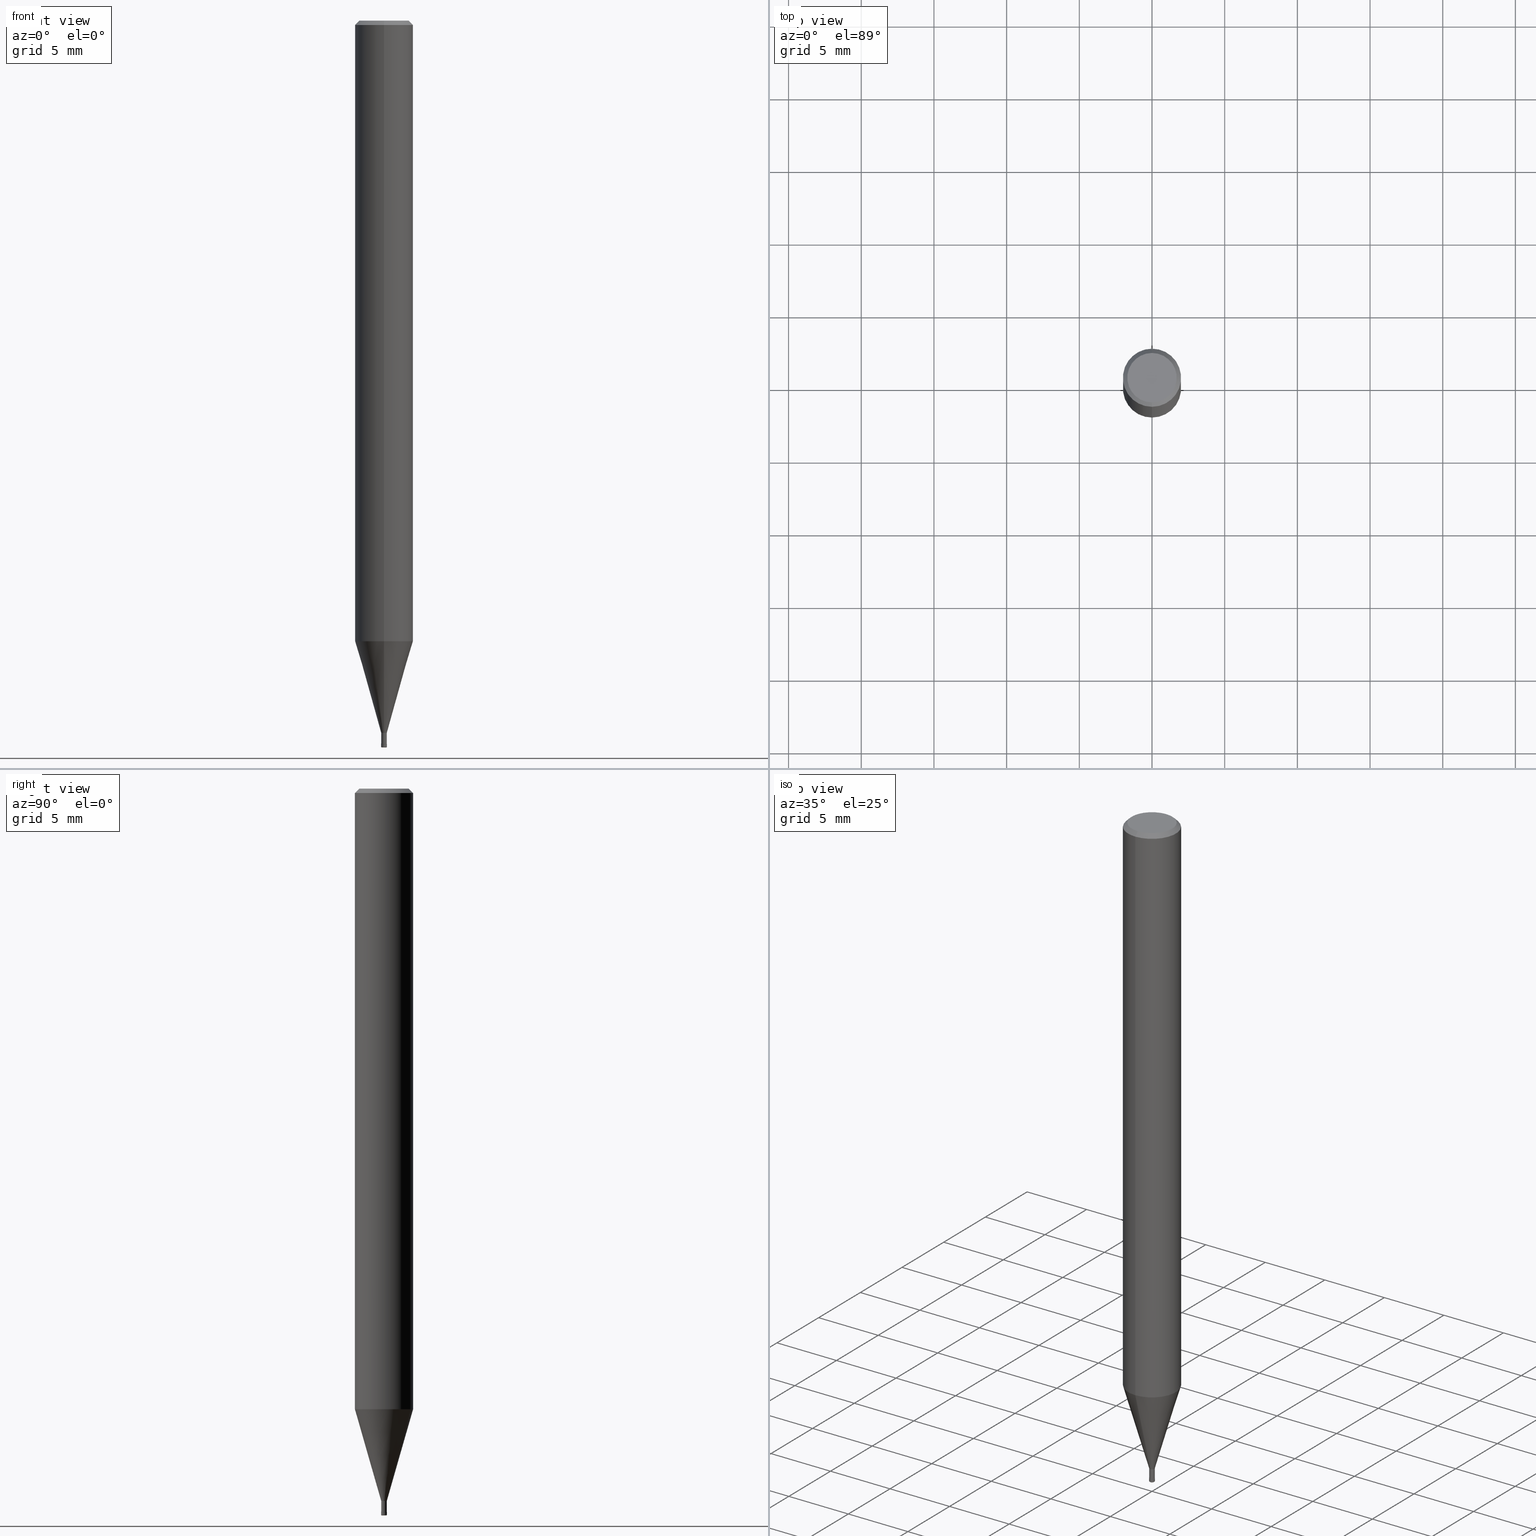
[diagram: canonical four-view strip — front | top / right | iso, engineering-drawing reading convention]
A machine part, canonical four-view strip (front | top / right | iso — engineering-drawing reading convention). The complete STEP part file that produces these views, byte-faithful:
ISO-10303-21;
HEADER;
FILE_DESCRIPTION(('no description'),'unknown implementation level');
FILE_NAME('HLRS4004-005-010-Huellk.stp','  ',('CIMSOURCE GmbH'),('CADClick - KiM GmbH - www.kimweb.de'),'unknown preprocess','ACIS','unknown authorization');
FILE_SCHEMA(('automotive_design'));
ENDSEC;
DATA;
#1=MECHANICAL_DESIGN_GEOMETRIC_PRESENTATION_REPRESENTATION(' ',(#14,#15,#16,#17,#18,#19,#20,#21,#22,#23,#24,#25,#26,#27,#28,#29,#30,#31,#32,#33,#34,#35,#36,#37,#38,#39,#40,#41,#42,#43,#44,#45,#46,#47,#48,#49,#50,#51,#52,#53,#54,#55,#56,#57,#58,#59,#60,#61,#62,#63,#64,#65,#66,#67,#68,#69,#70,#71,#72,#73,#74,#75,#76,#77,#78,#79,#80,#81,#82,#83,#84,#85,#86,#87,#88,#89,#90,#91,#92,#93,#94,#95,#96,#97,#98,#99,#100,#101,#102,#103,#104,#105,#106,#107,#108,#109,#110,#111,#112,#113,#114,#115,#116,#117,#118,#119,#120,#121),#10);
#2=PRODUCT_DEFINITION_CONTEXT('',#122,'design');
#3=APPLICATION_PROTOCOL_DEFINITION('INTERNATIONAL STANDARD','automotive_design',1994,#122);
#4=PRODUCT_CATEGORY_RELATIONSHIP('NONE','NONE',#123,#124);
#5=SHAPE_DEFINITION_REPRESENTATION(#125,#126);
#6=PRODUCT_DEFINITION_CONTEXT('',#127,'design');
#7=APPLICATION_PROTOCOL_DEFINITION('INTERNATIONAL STANDARD','automotive_design',1994,#127);
#8=PRODUCT_CATEGORY_RELATIONSHIP('NONE','NONE',#128,#129);
#9=SHAPE_DEFINITION_REPRESENTATION(#130,#131);
#10= (GEOMETRIC_REPRESENTATION_CONTEXT(3)GLOBAL_UNCERTAINTY_ASSIGNED_CONTEXT((#134))GLOBAL_UNIT_ASSIGNED_CONTEXT((#136,#137,#138))REPRESENTATION_CONTEXT('NONE','WORKSPACE'));
#14=STYLED_ITEM('',(#140),#141);
#15=STYLED_ITEM('',(#142),#143);
#16=STYLED_ITEM('',(#144),#145);
#17=STYLED_ITEM('',(#146),#147);
#18=STYLED_ITEM('',(#148),#149);
#19=STYLED_ITEM('',(#150),#151);
#20=STYLED_ITEM('',(#152),#153);
#21=STYLED_ITEM('',(#154),#155);
#22=STYLED_ITEM('',(#156),#157);
#23=STYLED_ITEM('',(#158),#159);
#24=STYLED_ITEM('',(#160),#161);
#25=STYLED_ITEM('',(#162),#163);
#26=STYLED_ITEM('',(#164),#165);
#27=STYLED_ITEM('',(#166),#167);
#28=STYLED_ITEM('',(#168),#169);
#29=STYLED_ITEM('',(#170),#171);
#30=STYLED_ITEM('',(#172),#173);
#31=STYLED_ITEM('',(#174),#175);
#32=STYLED_ITEM('',(#176),#177);
#33=STYLED_ITEM('',(#178),#179);
#34=STYLED_ITEM('',(#180),#181);
#35=STYLED_ITEM('',(#182),#183);
#36=STYLED_ITEM('',(#184),#185);
#37=STYLED_ITEM('',(#186),#187);
#38=STYLED_ITEM('',(#188),#189);
#39=STYLED_ITEM('',(#190),#191);
#40=STYLED_ITEM('',(#192),#193);
#41=STYLED_ITEM('',(#194),#195);
#42=STYLED_ITEM('',(#196),#197);
#43=STYLED_ITEM('',(#198),#199);
#44=STYLED_ITEM('',(#200),#201);
#45=STYLED_ITEM('',(#202),#203);
#46=STYLED_ITEM('',(#204),#205);
#47=STYLED_ITEM('',(#206),#207);
#48=STYLED_ITEM('',(#208),#209);
#49=STYLED_ITEM('',(#210),#211);
#50=STYLED_ITEM('',(#212),#213);
#51=STYLED_ITEM('',(#214),#215);
#52=STYLED_ITEM('',(#216),#217);
#53=STYLED_ITEM('',(#218),#219);
#54=STYLED_ITEM('',(#220),#221);
#55=STYLED_ITEM('',(#222),#223);
#56=STYLED_ITEM('',(#224),#225);
#57=STYLED_ITEM('',(#226),#227);
#58=STYLED_ITEM('',(#228),#229);
#59=STYLED_ITEM('',(#230),#231);
#60=STYLED_ITEM('',(#232),#233);
#61=STYLED_ITEM('',(#234),#235);
#62=STYLED_ITEM('',(#236),#237);
#63=STYLED_ITEM('',(#238),#239);
#64=STYLED_ITEM('',(#240),#241);
#65=STYLED_ITEM('',(#242),#243);
#66=STYLED_ITEM('',(#244),#245);
#67=STYLED_ITEM('',(#246),#247);
#68=STYLED_ITEM('',(#248),#249);
#69=STYLED_ITEM('',(#250),#251);
#70=STYLED_ITEM('',(#252),#253);
#71=STYLED_ITEM('',(#254),#255);
#72=STYLED_ITEM('',(#256),#257);
#73=STYLED_ITEM('',(#258),#259);
#74=STYLED_ITEM('',(#260),#261);
#75=STYLED_ITEM('',(#262),#263);
#76=STYLED_ITEM('',(#264),#265);
#77=STYLED_ITEM('',(#266),#267);
#78=STYLED_ITEM('',(#268),#269);
#79=STYLED_ITEM('',(#270),#271);
#80=STYLED_ITEM('',(#272),#273);
#81=STYLED_ITEM('',(#274),#275);
#82=STYLED_ITEM('',(#276),#277);
#83=STYLED_ITEM('',(#278),#279);
#84=STYLED_ITEM('',(#280),#281);
#85=STYLED_ITEM('',(#282),#283);
#86=STYLED_ITEM('',(#284),#285);
#87=STYLED_ITEM('',(#286),#287);
#88=STYLED_ITEM('',(#288),#289);
#89=STYLED_ITEM('',(#290),#291);
#90=STYLED_ITEM('',(#292),#293);
#91=STYLED_ITEM('',(#294),#295);
#92=STYLED_ITEM('',(#296),#297);
#93=STYLED_ITEM('',(#298),#299);
#94=STYLED_ITEM('',(#300),#301);
#95=STYLED_ITEM('',(#302),#303);
#96=STYLED_ITEM('',(#304),#305);
#97=STYLED_ITEM('',(#306),#307);
#98=STYLED_ITEM('',(#308),#309);
#99=STYLED_ITEM('',(#310),#311);
#100=STYLED_ITEM('',(#312),#313);
#101=STYLED_ITEM('',(#314),#315);
#102=STYLED_ITEM('',(#316),#317);
#103=STYLED_ITEM('',(#318),#319);
#104=STYLED_ITEM('',(#320),#321);
#105=STYLED_ITEM('',(#322),#323);
#106=STYLED_ITEM('',(#324),#325);
#107=STYLED_ITEM('',(#326),#327);
#108=STYLED_ITEM('',(#328),#329);
#109=STYLED_ITEM('',(#330),#331);
#110=STYLED_ITEM('',(#332),#333);
#111=STYLED_ITEM('',(#334),#335);
#112=STYLED_ITEM('',(#336),#337);
#113=STYLED_ITEM('',(#338),#339);
#114=STYLED_ITEM('',(#340),#341);
#115=STYLED_ITEM('',(#342),#343);
#116=STYLED_ITEM('',(#344),#345);
#117=STYLED_ITEM('',(#346),#347);
#118=STYLED_ITEM('',(#348),#349);
#119=STYLED_ITEM('',(#350),#351);
#120=STYLED_ITEM('',(#352),#353);
#121=STYLED_ITEM('',(#354),#355);
#122=APPLICATION_CONTEXT(' ');
#123=PRODUCT_CATEGORY('part','NONE');
#124=PRODUCT_RELATED_PRODUCT_CATEGORY('detail',' ',(#356));
#125=PRODUCT_DEFINITION_SHAPE('NONE','NONE',#357);
#126=ADVANCED_BREP_SHAPE_REPRESENTATION('1',(#353,#358),#10);
#127=APPLICATION_CONTEXT(' ');
#128=PRODUCT_CATEGORY('part','NONE');
#129=PRODUCT_RELATED_PRODUCT_CATEGORY('detail',' ',(#359));
#130=PRODUCT_DEFINITION_SHAPE('NONE','NONE',#360);
#131=ADVANCED_BREP_SHAPE_REPRESENTATION('2',(#297,#361),#10);
#134=UNCERTAINTY_MEASURE_WITH_UNIT(LENGTH_MEASURE(1.0E-006),#136,'','');
#136= (CONVERSION_BASED_UNIT('MILLIMETRE',#364)LENGTH_UNIT()NAMED_UNIT(#367));
#137= (NAMED_UNIT(#369)PLANE_ANGLE_UNIT()SI_UNIT($,.RADIAN.));
#138= (NAMED_UNIT(#369)SOLID_ANGLE_UNIT()SI_UNIT($,.STERADIAN.));
#140=PRESENTATION_STYLE_ASSIGNMENT((#375));
#141=ADVANCED_FACE('',(#376),#377,.T.);
#142=PRESENTATION_STYLE_ASSIGNMENT((#378));
#143=EDGE_CURVE('',#215,#283,#379,.T.);
#144=PRESENTATION_STYLE_ASSIGNMENT((#380));
#145=ADVANCED_FACE('',(#381),#382,.T.);
#146=PRESENTATION_STYLE_ASSIGNMENT((#383));
#147=VERTEX_POINT('',#384);
#148=PRESENTATION_STYLE_ASSIGNMENT((#385));
#149=EDGE_CURVE('',#209,#199,#386,.T.);
#150=PRESENTATION_STYLE_ASSIGNMENT((#387));
#151=EDGE_CURVE('',#147,#275,#388,.T.);
#152=PRESENTATION_STYLE_ASSIGNMENT((#389));
#153=ADVANCED_FACE('',(#390),#391,.T.);
#154=PRESENTATION_STYLE_ASSIGNMENT((#392));
#155=ADVANCED_FACE('',(#393),#394,.F.);
#156=PRESENTATION_STYLE_ASSIGNMENT((#395));
#157=EDGE_CURVE('',#293,#271,#396,.T.);
#158=PRESENTATION_STYLE_ASSIGNMENT((#397));
#159=VERTEX_POINT('',#398);
#160=PRESENTATION_STYLE_ASSIGNMENT((#399));
#161=EDGE_CURVE('',#247,#333,#400,.T.);
#162=PRESENTATION_STYLE_ASSIGNMENT((#401));
#163=ADVANCED_FACE('',(#402),#403,.F.);
#164=PRESENTATION_STYLE_ASSIGNMENT((#404));
#165=ADVANCED_FACE('',(#405),#406,.T.);
#166=PRESENTATION_STYLE_ASSIGNMENT((#407));
#167=VERTEX_POINT('',#408);
#168=PRESENTATION_STYLE_ASSIGNMENT((#409));
#169=EDGE_CURVE('',#221,#293,#410,.T.);
#170=PRESENTATION_STYLE_ASSIGNMENT((#411));
#171=ADVANCED_FACE('',(#412),#413,.T.);
#172=PRESENTATION_STYLE_ASSIGNMENT((#414));
#173=ADVANCED_FACE('',(#415),#416,.T.);
#174=PRESENTATION_STYLE_ASSIGNMENT((#417));
#175=ADVANCED_FACE('',(#418),#419,.F.);
#176=PRESENTATION_STYLE_ASSIGNMENT((#420));
#177=EDGE_CURVE('',#257,#221,#421,.T.);
#178=PRESENTATION_STYLE_ASSIGNMENT((#422));
#179=EDGE_CURVE('',#273,#271,#423,.T.);
#180=PRESENTATION_STYLE_ASSIGNMENT((#424));
#181=VERTEX_POINT('',#425);
#182=PRESENTATION_STYLE_ASSIGNMENT((#426));
#183=EDGE_CURVE('',#247,#181,#427,.T.);
#184=PRESENTATION_STYLE_ASSIGNMENT((#428));
#185=EDGE_CURVE('',#321,#209,#429,.T.);
#186=PRESENTATION_STYLE_ASSIGNMENT((#430));
#187=EDGE_CURVE('',#345,#167,#431,.T.);
#188=PRESENTATION_STYLE_ASSIGNMENT((#432));
#189=EDGE_CURVE('',#181,#247,#433,.T.);
#190=PRESENTATION_STYLE_ASSIGNMENT((#434));
#191=VERTEX_POINT('',#435);
#192=PRESENTATION_STYLE_ASSIGNMENT((#436));
#193=EDGE_CURVE('',#275,#147,#437,.T.);
#194=PRESENTATION_STYLE_ASSIGNMENT((#438));
#195=EDGE_CURVE('',#217,#167,#439,.T.);
#196=PRESENTATION_STYLE_ASSIGNMENT((#440));
#197=EDGE_CURVE('',#217,#333,#441,.T.);
#198=PRESENTATION_STYLE_ASSIGNMENT((#442));
#199=VERTEX_POINT('',#443);
#200=PRESENTATION_STYLE_ASSIGNMENT((#444));
#201=EDGE_CURVE('',#167,#217,#445,.T.);
#202=PRESENTATION_STYLE_ASSIGNMENT((#446));
#203=ADVANCED_FACE('',(#447),#448,.T.);
#204=PRESENTATION_STYLE_ASSIGNMENT((#449));
#205=VERTEX_POINT('',#450);
#206=PRESENTATION_STYLE_ASSIGNMENT((#451));
#207=EDGE_CURVE('',#275,#215,#452,.T.);
#208=PRESENTATION_STYLE_ASSIGNMENT((#453));
#209=VERTEX_POINT('',#454);
#210=PRESENTATION_STYLE_ASSIGNMENT((#455));
#211=EDGE_CURVE('',#237,#283,#456,.T.);
#212=PRESENTATION_STYLE_ASSIGNMENT((#457));
#213=EDGE_CURVE('',#305,#289,#458,.T.);
#214=PRESENTATION_STYLE_ASSIGNMENT((#459));
#215=VERTEX_POINT('',#460);
#216=PRESENTATION_STYLE_ASSIGNMENT((#461));
#217=VERTEX_POINT('',#462);
#218=PRESENTATION_STYLE_ASSIGNMENT((#463));
#219=EDGE_CURVE('',#191,#273,#464,.T.);
#220=PRESENTATION_STYLE_ASSIGNMENT((#465));
#221=VERTEX_POINT('',#466);
#222=PRESENTATION_STYLE_ASSIGNMENT((#467));
#223=ADVANCED_FACE('',(#468,#469),#470,.T.);
#224=PRESENTATION_STYLE_ASSIGNMENT((#471));
#225=EDGE_CURVE('',#199,#337,#472,.T.);
#226=PRESENTATION_STYLE_ASSIGNMENT((#473));
#227=VERTEX_POINT('',#474);
#228=PRESENTATION_STYLE_ASSIGNMENT((#475));
#229=EDGE_CURVE('',#321,#337,#476,.T.);
#230=PRESENTATION_STYLE_ASSIGNMENT((#477));
#231=EDGE_CURVE('',#221,#257,#478,.T.);
#232=PRESENTATION_STYLE_ASSIGNMENT((#479));
#233=ADVANCED_FACE('',(#480),#481,.T.);
#234=PRESENTATION_STYLE_ASSIGNMENT((#482));
#235=EDGE_CURVE('',#199,#209,#483,.T.);
#236=PRESENTATION_STYLE_ASSIGNMENT((#484));
#237=VERTEX_POINT('',#485);
#238=PRESENTATION_STYLE_ASSIGNMENT((#486));
#239=EDGE_CURVE('',#227,#335,#487,.T.);
#240=PRESENTATION_STYLE_ASSIGNMENT((#488));
#241=EDGE_CURVE('',#333,#345,#489,.T.);
#242=PRESENTATION_STYLE_ASSIGNMENT((#490));
#243=EDGE_CURVE('',#313,#321,#491,.T.);
#244=PRESENTATION_STYLE_ASSIGNMENT((#492));
#245=EDGE_CURVE('',#293,#191,#493,.T.);
#246=PRESENTATION_STYLE_ASSIGNMENT((#494));
#247=VERTEX_POINT('',#495);
#248=PRESENTATION_STYLE_ASSIGNMENT((#496));
#249=ADVANCED_FACE('',(#497),#498,.T.);
#250=PRESENTATION_STYLE_ASSIGNMENT((#499));
#251=EDGE_CURVE('',#261,#237,#500,.T.);
#252=PRESENTATION_STYLE_ASSIGNMENT((#501));
#253=ADVANCED_FACE('',(#502),#503,.T.);
#254=PRESENTATION_STYLE_ASSIGNMENT((#504));
#255=ADVANCED_FACE('',(#505),#506,.T.);
#256=PRESENTATION_STYLE_ASSIGNMENT((#507));
#257=VERTEX_POINT('',#508);
#258=PRESENTATION_STYLE_ASSIGNMENT((#509));
#259=ADVANCED_FACE('',(#510),#511,.T.);
#260=PRESENTATION_STYLE_ASSIGNMENT((#512));
#261=VERTEX_POINT('',#513);
#262=PRESENTATION_STYLE_ASSIGNMENT((#514));
#263=EDGE_CURVE('',#345,#181,#515,.T.);
#264=PRESENTATION_STYLE_ASSIGNMENT((#516));
#265=EDGE_CURVE('',#335,#205,#517,.T.);
#266=PRESENTATION_STYLE_ASSIGNMENT((#518));
#267=EDGE_CURVE('',#337,#321,#519,.T.);
#268=PRESENTATION_STYLE_ASSIGNMENT((#520));
#269=ADVANCED_FACE('',(#521),#522,.T.);
#270=PRESENTATION_STYLE_ASSIGNMENT((#523));
#271=VERTEX_POINT('',#524);
#272=PRESENTATION_STYLE_ASSIGNMENT((#525));
#273=VERTEX_POINT('',#526);
#274=PRESENTATION_STYLE_ASSIGNMENT((#527));
#275=VERTEX_POINT('',#528);
#276=PRESENTATION_STYLE_ASSIGNMENT((#529));
#277=EDGE_CURVE('',#345,#333,#530,.T.);
#278=PRESENTATION_STYLE_ASSIGNMENT((#531));
#279=ADVANCED_FACE('',(#532),#533,.T.);
#280=PRESENTATION_STYLE_ASSIGNMENT((#534));
#281=EDGE_CURVE('',#273,#191,#535,.T.);
#282=PRESENTATION_STYLE_ASSIGNMENT((#536));
#283=VERTEX_POINT('',#537);
#284=PRESENTATION_STYLE_ASSIGNMENT((#538));
#285=EDGE_CURVE('',#335,#227,#539,.T.);
#286=PRESENTATION_STYLE_ASSIGNMENT((#540));
#287=EDGE_CURVE('',#309,#313,#541,.T.);
#288=PRESENTATION_STYLE_ASSIGNMENT((#542));
#289=VERTEX_POINT('',#543);
#290=PRESENTATION_STYLE_ASSIGNMENT((#544));
#291=EDGE_CURVE('',#289,#159,#545,.T.);
#292=PRESENTATION_STYLE_ASSIGNMENT((#546));
#293=VERTEX_POINT('',#547);
#294=PRESENTATION_STYLE_ASSIGNMENT((#548));
#295=EDGE_CURVE('',#283,#147,#549,.T.);
#296=PRESENTATION_STYLE_ASSIGNMENT((#550));
#297=MANIFOLD_SOLID_BREP('2',#551);
#298=PRESENTATION_STYLE_ASSIGNMENT((#552));
#299=ADVANCED_FACE('',(#553,#554),#555,.T.);
#300=PRESENTATION_STYLE_ASSIGNMENT((#556));
#301=EDGE_CURVE('',#289,#305,#557,.T.);
#302=PRESENTATION_STYLE_ASSIGNMENT((#558));
#303=EDGE_CURVE('',#159,#205,#559,.T.);
#304=PRESENTATION_STYLE_ASSIGNMENT((#560));
#305=VERTEX_POINT('',#561);
#306=PRESENTATION_STYLE_ASSIGNMENT((#562));
#307=ADVANCED_FACE('',(#563,#564),#565,.T.);
#308=PRESENTATION_STYLE_ASSIGNMENT((#566));
#309=VERTEX_POINT('',#567);
#310=PRESENTATION_STYLE_ASSIGNMENT((#568));
#311=EDGE_CURVE('',#313,#309,#569,.T.);
#312=PRESENTATION_STYLE_ASSIGNMENT((#570));
#313=VERTEX_POINT('',#571);
#314=PRESENTATION_STYLE_ASSIGNMENT((#572));
#315=EDGE_CURVE('',#283,#215,#573,.T.);
#316=PRESENTATION_STYLE_ASSIGNMENT((#574));
#317=ADVANCED_FACE('',(#575,#576),#577,.T.);
#318=PRESENTATION_STYLE_ASSIGNMENT((#578));
#319=EDGE_CURVE('',#237,#261,#579,.T.);
#320=PRESENTATION_STYLE_ASSIGNMENT((#580));
#321=VERTEX_POINT('',#581);
#322=PRESENTATION_STYLE_ASSIGNMENT((#582));
#323=EDGE_CURVE('',#205,#159,#583,.T.);
#324=PRESENTATION_STYLE_ASSIGNMENT((#584));
#325=EDGE_CURVE('',#159,#227,#585,.T.);
#326=PRESENTATION_STYLE_ASSIGNMENT((#586));
#327=EDGE_CURVE('',#337,#309,#587,.T.);
#328=PRESENTATION_STYLE_ASSIGNMENT((#588));
#329=EDGE_CURVE('',#271,#293,#589,.T.);
#330=PRESENTATION_STYLE_ASSIGNMENT((#590));
#331=EDGE_CURVE('',#205,#305,#591,.T.);
#332=PRESENTATION_STYLE_ASSIGNMENT((#592));
#333=VERTEX_POINT('',#593);
#334=PRESENTATION_STYLE_ASSIGNMENT((#594));
#335=VERTEX_POINT('',#595);
#336=PRESENTATION_STYLE_ASSIGNMENT((#596));
#337=VERTEX_POINT('',#597);
#338=PRESENTATION_STYLE_ASSIGNMENT((#598));
#339=ADVANCED_FACE('',(#599),#600,.T.);
#340=PRESENTATION_STYLE_ASSIGNMENT((#601));
#341=ADVANCED_FACE('',(#602),#603,.T.);
#342=PRESENTATION_STYLE_ASSIGNMENT((#604));
#343=ADVANCED_FACE('',(#605),#606,.F.);
#344=PRESENTATION_STYLE_ASSIGNMENT((#607));
#345=VERTEX_POINT('',#608);
#346=PRESENTATION_STYLE_ASSIGNMENT((#609));
#347=EDGE_CURVE('',#215,#261,#610,.T.);
#348=PRESENTATION_STYLE_ASSIGNMENT((#611));
#349=EDGE_CURVE('',#271,#257,#612,.T.);
#350=PRESENTATION_STYLE_ASSIGNMENT((#613));
#351=ADVANCED_FACE('',(#614),#615,.T.);
#352=PRESENTATION_STYLE_ASSIGNMENT((#616));
#353=MANIFOLD_SOLID_BREP('1',#617);
#354=PRESENTATION_STYLE_ASSIGNMENT((#618));
#355=ADVANCED_FACE('',(#619),#620,.T.);
#356=PRODUCT('1','1','PART-1-DESC',(#621));
#357=PRODUCT_DEFINITION('NONE','NONE',#622,#2);
#358=AXIS2_PLACEMENT_3D('',#623,#624,#625);
#359=PRODUCT('2','2','PART-2-DESC',(#626));
#360=PRODUCT_DEFINITION('NONE','NONE',#627,#6);
#361=AXIS2_PLACEMENT_3D('',#628,#629,#630);
#364=LENGTH_MEASURE_WITH_UNIT(LENGTH_MEASURE(1.0),#631);
#367=DIMENSIONAL_EXPONENTS(1.0,0.0,0.0,0.0,0.0,0.0,0.0);
#369=DIMENSIONAL_EXPONENTS(0.0,0.0,0.0,0.0,0.0,0.0,0.0);
#375=SURFACE_STYLE_USAGE(.BOTH.,#632);
#376=FACE_OUTER_BOUND('',#633,.T.);
#377=PLANE('',#634);
#378=CURVE_STYLE('',#635,POSITIVE_LENGTH_MEASURE(1.0E-006),#636);
#379=CIRCLE('',#637,2.0);
#380=SURFACE_STYLE_USAGE(.BOTH.,#638);
#381=FACE_OUTER_BOUND('',#639,.T.);
#382=CYLINDRICAL_SURFACE('',#640,0.19245);
#383=POINT_STYLE(' ',#641,POSITIVE_LENGTH_MEASURE(1.0E-006),#642);
#384=CARTESIAN_POINT('',(2.08183080149804E-016,-1.7,0.00999999999999801));
#385=CURVE_STYLE('',#643,POSITIVE_LENGTH_MEASURE(1.0E-006),#644);
#386=CIRCLE('',#645,1.99995);
#387=CURVE_STYLE('',#646,POSITIVE_LENGTH_MEASURE(1.0E-006),#647);
#388=CIRCLE('',#648,1.7);
#389=SURFACE_STYLE_USAGE(.BOTH.,#649);
#390=FACE_OUTER_BOUND('',#650,.T.);
#391=CONICAL_SURFACE('',#651,0.142475,1.47579965541249);
#392=SURFACE_STYLE_USAGE(.BOTH.,#652);
#393=FACE_OUTER_BOUND('',#653,.T.);
#394=CYLINDRICAL_SURFACE('',#654,0.09);
#395=CURVE_STYLE('',#655,POSITIVE_LENGTH_MEASURE(1.0E-006),#656);
#396=CIRCLE('',#657,0.09);
#397=POINT_STYLE(' ',#658,POSITIVE_LENGTH_MEASURE(1.0E-006),#659);
#398=CARTESIAN_POINT('',(1.10214571844014E-017,-0.09,-49.76));
#399=CURVE_STYLE('',#660,POSITIVE_LENGTH_MEASURE(1.0E-006),#661);
#400=LINE('',#662,#663);
#401=SURFACE_STYLE_USAGE(.BOTH.,#664);
#402=FACE_OUTER_BOUND('',#665,.T.);
#403=CONICAL_SURFACE('',#666,0.14245,1.47575464789401);
#404=SURFACE_STYLE_USAGE(.BOTH.,#667);
#405=FACE_OUTER_BOUND('',#668,.T.);
#406=CONICAL_SURFACE('',#669,1.0962,0.279231732547063);
#407=POINT_STYLE(' ',#670,POSITIVE_LENGTH_MEASURE(1.0E-006),#671);
#408=CARTESIAN_POINT('',(1.83690953073357E-017,-0.15,-49.99));
#409=CURVE_STYLE('',#672,POSITIVE_LENGTH_MEASURE(1.0E-006),#673);
#410=LINE('',#674,#675);
#411=SURFACE_STYLE_USAGE(.BOTH.,#676);
#412=FACE_OUTER_BOUND('',#677,.T.);
#413=TOROIDAL_SURFACE('',#678,0.15,0.05);
#414=SURFACE_STYLE_USAGE(.BOTH.,#679);
#415=FACE_OUTER_BOUND('',#680,.T.);
#416=CONICAL_SURFACE('',#681,0.19995,0.000526315740875831);
#417=SURFACE_STYLE_USAGE(.BOTH.,#682);
#418=FACE_OUTER_BOUND('',#683,.T.);
#419=CYLINDRICAL_SURFACE('',#684,0.09);
#420=CURVE_STYLE('',#685,POSITIVE_LENGTH_MEASURE(1.0E-006),#686);
#421=CIRCLE('',#687,0.09);
#422=CURVE_STYLE('',#688,POSITIVE_LENGTH_MEASURE(1.0E-006),#689);
#423=LINE('',#690,#691);
#424=POINT_STYLE(' ',#692,POSITIVE_LENGTH_MEASURE(1.0E-006),#693);
#425=CARTESIAN_POINT('',(2.44798810129093E-017,-0.1999,-49.75));
#426=CURVE_STYLE('',#694,POSITIVE_LENGTH_MEASURE(1.0E-006),#695);
#427=CIRCLE('',#696,0.1999);
#428=CURVE_STYLE('',#697,POSITIVE_LENGTH_MEASURE(1.0E-006),#698);
#429=LINE('',#699,#700);
#430=CURVE_STYLE('',#701,POSITIVE_LENGTH_MEASURE(1.0E-006),#702);
#431=CIRCLE('',#703,0.05);
#432=CURVE_STYLE('',#704,POSITIVE_LENGTH_MEASURE(1.0E-006),#705);
#433=CIRCLE('',#706,0.1999);
#434=POINT_STYLE(' ',#707,POSITIVE_LENGTH_MEASURE(1.0E-006),#708);
#435=CARTESIAN_POINT('',(2.38675778359981E-017,-0.1949,-49.75));
#436=CURVE_STYLE('',#709,POSITIVE_LENGTH_MEASURE(1.0E-006),#710);
#437=CIRCLE('',#711,1.7);
#438=CURVE_STYLE('',#712,POSITIVE_LENGTH_MEASURE(1.0E-006),#713);
#439=CIRCLE('',#714,0.15);
#440=CURVE_STYLE('',#715,POSITIVE_LENGTH_MEASURE(1.0E-006),#716);
#441=CIRCLE('',#717,0.05);
#442=POINT_STYLE(' ',#718,POSITIVE_LENGTH_MEASURE(1.0E-006),#719);
#443=CARTESIAN_POINT('',(0.0,1.99995,-42.686));
#444=CURVE_STYLE('',#720,POSITIVE_LENGTH_MEASURE(1.0E-006),#721);
#445=CIRCLE('',#722,0.15);
#446=SURFACE_STYLE_USAGE(.BOTH.,#723);
#447=FACE_OUTER_BOUND('',#724,.T.);
#448=TOROIDAL_SURFACE('',#725,0.15,0.05);
#449=POINT_STYLE(' ',#726,POSITIVE_LENGTH_MEASURE(1.0E-006),#727);
#450=CARTESIAN_POINT('',(0.0,0.09,-49.76));
#451=CURVE_STYLE('',#728,POSITIVE_LENGTH_MEASURE(1.0E-006),#729);
#452=LINE('',#730,#731);
#453=POINT_STYLE(' ',#732,POSITIVE_LENGTH_MEASURE(1.0E-006),#733);
#454=CARTESIAN_POINT('',(2.44915147732706E-016,-1.99995,-42.686));
#455=CURVE_STYLE('',#734,POSITIVE_LENGTH_MEASURE(1.0E-006),#735);
#456=LINE('',#736,#737);
#457=CURVE_STYLE('',#738,POSITIVE_LENGTH_MEASURE(1.0E-006),#739);
#458=CIRCLE('',#740,0.09);
#459=POINT_STYLE(' ',#741,POSITIVE_LENGTH_MEASURE(1.0E-006),#742);
#460=CARTESIAN_POINT('',(0.0,2.0,-0.289999999999999));
#461=POINT_STYLE(' ',#743,POSITIVE_LENGTH_MEASURE(1.0E-006),#744);
#462=CARTESIAN_POINT('',(0.0,0.15,-49.99));
#463=CURVE_STYLE('',#745,POSITIVE_LENGTH_MEASURE(1.0E-006),#746);
#464=CIRCLE('',#747,0.1949);
#465=POINT_STYLE(' ',#748,POSITIVE_LENGTH_MEASURE(1.0E-006),#749);
#466=CARTESIAN_POINT('',(1.10214571844014E-017,-0.09,-49.99));
#467=SURFACE_STYLE_USAGE(.BOTH.,#750);
#468=FACE_OUTER_BOUND('',#751,.T.);
#469=FACE_BOUND('',#752,.T.);
#470=PLANE('',#753);
#471=CURVE_STYLE('',#754,POSITIVE_LENGTH_MEASURE(1.0E-006),#755);
#472=LINE('',#756,#757);
#473=POINT_STYLE(' ',#758,POSITIVE_LENGTH_MEASURE(1.0E-006),#759);
#474=CARTESIAN_POINT('',(2.38737008677672E-017,-0.19495,-49.75));
#475=CURVE_STYLE('',#760,POSITIVE_LENGTH_MEASURE(1.0E-006),#761);
#476=CIRCLE('',#762,0.19245);
#477=CURVE_STYLE('',#763,POSITIVE_LENGTH_MEASURE(1.0E-006),#764);
#478=CIRCLE('',#765,0.09);
#479=SURFACE_STYLE_USAGE(.BOTH.,#766);
#480=FACE_OUTER_BOUND('',#767,.T.);
#481=PLANE('',#768);
#482=CURVE_STYLE('',#769,POSITIVE_LENGTH_MEASURE(1.0E-006),#770);
#483=CIRCLE('',#771,1.99995);
#484=POINT_STYLE(' ',#772,POSITIVE_LENGTH_MEASURE(1.0E-006),#773);
#485=CARTESIAN_POINT('',(2.44921270764475E-016,-2.0,-42.686));
#486=CURVE_STYLE('',#774,POSITIVE_LENGTH_MEASURE(1.0E-006),#775);
#487=CIRCLE('',#776,0.19495);
#488=CURVE_STYLE('',#777,POSITIVE_LENGTH_MEASURE(1.0E-006),#778);
#489=CIRCLE('',#779,0.2);
#490=CURVE_STYLE('',#780,POSITIVE_LENGTH_MEASURE(1.0E-006),#781);
#491=LINE('',#782,#783);
#492=CURVE_STYLE('',#784,POSITIVE_LENGTH_MEASURE(1.0E-006),#785);
#493=LINE('',#786,#787);
#494=POINT_STYLE(' ',#788,POSITIVE_LENGTH_MEASURE(1.0E-006),#789);
#495=CARTESIAN_POINT('',(0.0,0.1999,-49.75));
#496=SURFACE_STYLE_USAGE(.BOTH.,#790);
#497=FACE_OUTER_BOUND('',#791,.T.);
#498=CONICAL_SURFACE('',#792,1.85,0.785398163397453);
#499=CURVE_STYLE('',#793,POSITIVE_LENGTH_MEASURE(1.0E-006),#794);
#500=CIRCLE('',#795,2.0);
#501=SURFACE_STYLE_USAGE(.BOTH.,#796);
#502=FACE_OUTER_BOUND('',#797,.T.);
#503=CONICAL_SURFACE('',#798,1.85,0.785398163397453);
#504=SURFACE_STYLE_USAGE(.BOTH.,#799);
#505=FACE_OUTER_BOUND('',#800,.T.);
#506=CONICAL_SURFACE('',#801,0.19995,0.000526315740875831);
#507=POINT_STYLE(' ',#802,POSITIVE_LENGTH_MEASURE(1.0E-006),#803);
#508=CARTESIAN_POINT('',(0.0,0.09,-49.99));
#509=SURFACE_STYLE_USAGE(.BOTH.,#804);
#510=FACE_OUTER_BOUND('',#805,.T.);
#511=CONICAL_SURFACE('',#806,1.0962,0.279231732547063);
#512=POINT_STYLE(' ',#807,POSITIVE_LENGTH_MEASURE(1.0E-006),#808);
#513=CARTESIAN_POINT('',(0.0,2.0,-42.686));
#514=CURVE_STYLE('',#809,POSITIVE_LENGTH_MEASURE(1.0E-006),#810);
#515=LINE('',#811,#812);
#516=CURVE_STYLE('',#813,POSITIVE_LENGTH_MEASURE(1.0E-006),#814);
#517=LINE('',#815,#816);
#518=CURVE_STYLE('',#817,POSITIVE_LENGTH_MEASURE(1.0E-006),#818);
#519=CIRCLE('',#819,0.19245);
#520=SURFACE_STYLE_USAGE(.BOTH.,#820);
#521=FACE_OUTER_BOUND('',#821,.T.);
#522=CYLINDRICAL_SURFACE('',#822,0.09);
#523=POINT_STYLE(' ',#823,POSITIVE_LENGTH_MEASURE(1.0E-006),#824);
#524=CARTESIAN_POINT('',(0.0,0.09,-49.76));
#525=POINT_STYLE(' ',#825,POSITIVE_LENGTH_MEASURE(1.0E-006),#826);
#526=CARTESIAN_POINT('',(0.0,0.1949,-49.75));
#527=POINT_STYLE(' ',#827,POSITIVE_LENGTH_MEASURE(1.0E-006),#828);
#528=CARTESIAN_POINT('',(0.0,1.7,0.00999999999999801));
#529=CURVE_STYLE('',#829,POSITIVE_LENGTH_MEASURE(1.0E-006),#830);
#530=CIRCLE('',#831,0.2);
#531=SURFACE_STYLE_USAGE(.BOTH.,#832);
#532=FACE_OUTER_BOUND('',#833,.T.);
#533=CONICAL_SURFACE('',#834,0.142475,1.47579965541249);
#534=CURVE_STYLE('',#835,POSITIVE_LENGTH_MEASURE(1.0E-006),#836);
#535=CIRCLE('',#837,0.1949);
#536=POINT_STYLE(' ',#838,POSITIVE_LENGTH_MEASURE(1.0E-006),#839);
#537=CARTESIAN_POINT('',(2.44921270764475E-016,-2.0,-0.289999999999999));
#538=CURVE_STYLE('',#840,POSITIVE_LENGTH_MEASURE(1.0E-006),#841);
#539=CIRCLE('',#842,0.19495);
#540=CURVE_STYLE('',#843,POSITIVE_LENGTH_MEASURE(1.0E-006),#844);
#541=CIRCLE('',#845,0.19245);
#542=POINT_STYLE(' ',#846,POSITIVE_LENGTH_MEASURE(1.0E-006),#847);
#543=CARTESIAN_POINT('',(1.10214571844014E-017,-0.09,-49.93));
#544=CURVE_STYLE('',#848,POSITIVE_LENGTH_MEASURE(1.0E-006),#849);
#545=LINE('',#850,#851);
#546=POINT_STYLE(' ',#852,POSITIVE_LENGTH_MEASURE(1.0E-006),#853);
#547=CARTESIAN_POINT('',(1.10214571844014E-017,-0.09,-49.76));
#548=CURVE_STYLE('',#854,POSITIVE_LENGTH_MEASURE(1.0E-006),#855);
#549=LINE('',#856,#857);
#550=SURFACE_STYLE_USAGE(.BOTH.,#858);
#551=CLOSED_SHELL('',(#155,#203,#255,#163,#343,#299,#173,#171,#317,#175));
#552=SURFACE_STYLE_USAGE(.BOTH.,#859);
#553=FACE_OUTER_BOUND('',#860,.T.);
#554=FACE_BOUND('',#861,.T.);
#555=PLANE('',#862);
#556=CURVE_STYLE('',#863,POSITIVE_LENGTH_MEASURE(1.0E-006),#864);
#557=CIRCLE('',#865,0.09);
#558=CURVE_STYLE('',#866,POSITIVE_LENGTH_MEASURE(1.0E-006),#867);
#559=CIRCLE('',#868,0.09);
#560=POINT_STYLE(' ',#869,POSITIVE_LENGTH_MEASURE(1.0E-006),#870);
#561=CARTESIAN_POINT('',(0.0,0.09,-49.93));
#562=SURFACE_STYLE_USAGE(.BOTH.,#871);
#563=FACE_OUTER_BOUND('',#872,.T.);
#564=FACE_BOUND('',#873,.T.);
#565=PLANE('',#874);
#566=POINT_STYLE(' ',#875,POSITIVE_LENGTH_MEASURE(1.0E-006),#876);
#567=CARTESIAN_POINT('',(0.0,0.19245,-49.75));
#568=CURVE_STYLE('',#877,POSITIVE_LENGTH_MEASURE(1.0E-006),#878);
#569=CIRCLE('',#879,0.19245);
#570=POINT_STYLE(' ',#880,POSITIVE_LENGTH_MEASURE(1.0E-006),#881);
#571=CARTESIAN_POINT('',(2.35675492793117E-017,-0.19245,-49.75));
#572=CURVE_STYLE('',#882,POSITIVE_LENGTH_MEASURE(1.0E-006),#883);
#573=CIRCLE('',#884,2.0);
#574=SURFACE_STYLE_USAGE(.BOTH.,#885);
#575=FACE_BOUND('',#886,.T.);
#576=FACE_OUTER_BOUND('',#887,.T.);
#577=PLANE('',#888);
#578=CURVE_STYLE('',#889,POSITIVE_LENGTH_MEASURE(1.0E-006),#890);
#579=CIRCLE('',#891,2.0);
#580=POINT_STYLE(' ',#892,POSITIVE_LENGTH_MEASURE(1.0E-006),#893);
#581=CARTESIAN_POINT('',(2.35675492793117E-017,-0.19245,-48.99));
#582=CURVE_STYLE('',#894,POSITIVE_LENGTH_MEASURE(1.0E-006),#895);
#583=CIRCLE('',#896,0.09);
#584=CURVE_STYLE('',#897,POSITIVE_LENGTH_MEASURE(1.0E-006),#898);
#585=LINE('',#899,#900);
#586=CURVE_STYLE('',#901,POSITIVE_LENGTH_MEASURE(1.0E-006),#902);
#587=LINE('',#903,#904);
#588=CURVE_STYLE('',#905,POSITIVE_LENGTH_MEASURE(1.0E-006),#906);
#589=CIRCLE('',#907,0.09);
#590=CURVE_STYLE('',#908,POSITIVE_LENGTH_MEASURE(1.0E-006),#909);
#591=LINE('',#910,#911);
#592=POINT_STYLE(' ',#912,POSITIVE_LENGTH_MEASURE(1.0E-006),#913);
#593=CARTESIAN_POINT('',(0.0,0.2,-49.94));
#594=POINT_STYLE(' ',#914,POSITIVE_LENGTH_MEASURE(1.0E-006),#915);
#595=CARTESIAN_POINT('',(0.0,0.19495,-49.75));
#596=POINT_STYLE(' ',#916,POSITIVE_LENGTH_MEASURE(1.0E-006),#917);
#597=CARTESIAN_POINT('',(0.0,0.19245,-48.99));
#598=SURFACE_STYLE_USAGE(.BOTH.,#918);
#599=FACE_OUTER_BOUND('',#919,.T.);
#600=CYLINDRICAL_SURFACE('',#920,2.0);
#601=SURFACE_STYLE_USAGE(.BOTH.,#921);
#602=FACE_OUTER_BOUND('',#922,.T.);
#603=CYLINDRICAL_SURFACE('',#923,0.19245);
#604=SURFACE_STYLE_USAGE(.BOTH.,#924);
#605=FACE_OUTER_BOUND('',#925,.T.);
#606=CONICAL_SURFACE('',#926,0.14245,1.47575464789401);
#607=POINT_STYLE(' ',#927,POSITIVE_LENGTH_MEASURE(1.0E-006),#928);
#608=CARTESIAN_POINT('',(2.44921270764475E-017,-0.2,-49.94));
#609=CURVE_STYLE('',#929,POSITIVE_LENGTH_MEASURE(1.0E-006),#930);
#610=LINE('',#931,#932);
#611=CURVE_STYLE('',#933,POSITIVE_LENGTH_MEASURE(1.0E-006),#934);
#612=LINE('',#935,#936);
#613=SURFACE_STYLE_USAGE(.BOTH.,#937);
#614=FACE_OUTER_BOUND('',#938,.T.);
#615=CYLINDRICAL_SURFACE('',#939,2.0);
#616=SURFACE_STYLE_USAGE(.BOTH.,#940);
#617=CLOSED_SHELL('',(#355,#279,#145,#259,#351,#249,#307,#233,#253,#339,#165,#341,#223,#153,#269,#141));
#618=SURFACE_STYLE_USAGE(.BOTH.,#941);
#619=FACE_OUTER_BOUND('',#942,.T.);
#620=CYLINDRICAL_SURFACE('',#943,0.09);
#621=PRODUCT_CONTEXT('',#122,'mechanical');
#622=PRODUCT_DEFINITION_FORMATION_WITH_SPECIFIED_SOURCE(' ','NONE',#356,.NOT_KNOWN.);
#623=CARTESIAN_POINT('',(0.0,0.0,0.0));
#624=DIRECTION('',(0.0,0.0,1.0));
#625=DIRECTION('',(1.0,0.0,0.0));
#626=PRODUCT_CONTEXT('',#127,'mechanical');
#627=PRODUCT_DEFINITION_FORMATION_WITH_SPECIFIED_SOURCE(' ','NONE',#359,.NOT_KNOWN.);
#628=CARTESIAN_POINT('',(0.0,0.0,0.0));
#629=DIRECTION('',(0.0,0.0,1.0));
#630=DIRECTION('',(1.0,0.0,0.0));
#631= (NAMED_UNIT(#367)LENGTH_UNIT()SI_UNIT(.MILLI.,.METRE.));
#632=SURFACE_SIDE_STYLE('',(#945));
#633=EDGE_LOOP('',(#946,#947));
#634=AXIS2_PLACEMENT_3D('',#948,#949,#950);
#635=DRAUGHTING_PRE_DEFINED_CURVE_FONT('continuous');
#636=COLOUR_RGB('',0.498039215803146,0.498039215803146,0.498039215803146);
#637=AXIS2_PLACEMENT_3D('',#951,#952,#953);
#638=SURFACE_SIDE_STYLE('',(#954));
#639=EDGE_LOOP('',(#955,#956,#957,#958));
#640=AXIS2_PLACEMENT_3D('',#959,#960,#961);
#641=PRE_DEFINED_MARKER('');
#642=COLOUR_RGB('',0.498039215803146,0.498039215803146,0.498039215803146);
#643=DRAUGHTING_PRE_DEFINED_CURVE_FONT('continuous');
#644=COLOUR_RGB('',0.498039215803146,0.498039215803146,0.498039215803146);
#645=AXIS2_PLACEMENT_3D('',#962,#963,#964);
#646=DRAUGHTING_PRE_DEFINED_CURVE_FONT('continuous');
#647=COLOUR_RGB('',0.498039215803146,0.498039215803146,0.498039215803146);
#648=AXIS2_PLACEMENT_3D('',#965,#966,#967);
#649=SURFACE_SIDE_STYLE('',(#968));
#650=EDGE_LOOP('',(#969,#970,#971,#972));
#651=AXIS2_PLACEMENT_3D('',#973,#974,#975);
#652=SURFACE_SIDE_STYLE('',(#976));
#653=EDGE_LOOP('',(#977,#978,#979,#980));
#654=AXIS2_PLACEMENT_3D('',#981,#982,#983);
#655=DRAUGHTING_PRE_DEFINED_CURVE_FONT('continuous');
#656=COLOUR_RGB('',0.800000011920929,0.800000011920929,0.800000011920929);
#657=AXIS2_PLACEMENT_3D('',#984,#985,#986);
#658=PRE_DEFINED_MARKER('');
#659=COLOUR_RGB('',0.498039215803146,0.498039215803146,0.498039215803146);
#660=DRAUGHTING_PRE_DEFINED_CURVE_FONT('continuous');
#661=COLOUR_RGB('',0.800000011920929,0.800000011920929,0.800000011920929);
#662=CARTESIAN_POINT('',(-2.44860040446784E-017,0.19995,-49.845));
#663=VECTOR('',#987,1.0);
#664=SURFACE_SIDE_STYLE('',(#988));
#665=EDGE_LOOP('',(#989,#990,#991,#992));
#666=AXIS2_PLACEMENT_3D('',#993,#994,#995);
#667=SURFACE_SIDE_STYLE('',(#996));
#668=EDGE_LOOP('',(#997,#998,#999,#1000));
#669=AXIS2_PLACEMENT_3D('',#1001,#1002,#1003);
#670=PRE_DEFINED_MARKER('');
#671=COLOUR_RGB('',0.800000011920929,0.800000011920929,0.800000011920929);
#672=DRAUGHTING_PRE_DEFINED_CURVE_FONT('continuous');
#673=COLOUR_RGB('',0.800000011920929,0.800000011920929,0.800000011920929);
#674=CARTESIAN_POINT('',(1.10214571844014E-017,-0.09,-49.875));
#675=VECTOR('',#1004,1.0);
#676=SURFACE_SIDE_STYLE('',(#1005));
#677=EDGE_LOOP('',(#1006,#1007,#1008,#1009));
#678=AXIS2_PLACEMENT_3D('',#1010,#1011,#1012);
#679=SURFACE_SIDE_STYLE('',(#1013));
#680=EDGE_LOOP('',(#1014,#1015,#1016,#1017));
#681=AXIS2_PLACEMENT_3D('',#1018,#1019,#1020);
#682=SURFACE_SIDE_STYLE('',(#1021));
#683=EDGE_LOOP('',(#1022,#1023,#1024,#1025));
#684=AXIS2_PLACEMENT_3D('',#1026,#1027,#1028);
#685=DRAUGHTING_PRE_DEFINED_CURVE_FONT('continuous');
#686=COLOUR_RGB('',0.800000011920929,0.800000011920929,0.800000011920929);
#687=AXIS2_PLACEMENT_3D('',#1029,#1030,#1031);
#688=DRAUGHTING_PRE_DEFINED_CURVE_FONT('continuous');
#689=COLOUR_RGB('',0.800000011920929,0.800000011920929,0.800000011920929);
#690=CARTESIAN_POINT('',(-1.74445175101998E-017,0.14245,-49.755));
#691=VECTOR('',#1032,1.0);
#692=PRE_DEFINED_MARKER('');
#693=COLOUR_RGB('',0.800000011920929,0.800000011920929,0.800000011920929);
#694=DRAUGHTING_PRE_DEFINED_CURVE_FONT('continuous');
#695=COLOUR_RGB('',0.800000011920929,0.800000011920929,0.800000011920929);
#696=AXIS2_PLACEMENT_3D('',#1033,#1034,#1035);
#697=DRAUGHTING_PRE_DEFINED_CURVE_FONT('continuous');
#698=COLOUR_RGB('',0.498039215803146,0.498039215803146,0.498039215803146);
#699=CARTESIAN_POINT('',(1.34241348506009E-016,-1.0962,-45.838));
#700=VECTOR('',#1036,1.0);
#701=DRAUGHTING_PRE_DEFINED_CURVE_FONT('continuous');
#702=COLOUR_RGB('',0.800000011920929,0.800000011920929,0.800000011920929);
#703=AXIS2_PLACEMENT_3D('',#1037,#1038,#1039);
#704=DRAUGHTING_PRE_DEFINED_CURVE_FONT('continuous');
#705=COLOUR_RGB('',0.800000011920929,0.800000011920929,0.800000011920929);
#706=AXIS2_PLACEMENT_3D('',#1040,#1041,#1042);
#707=PRE_DEFINED_MARKER('');
#708=COLOUR_RGB('',0.800000011920929,0.800000011920929,0.800000011920929);
#709=DRAUGHTING_PRE_DEFINED_CURVE_FONT('continuous');
#710=COLOUR_RGB('',0.498039215803146,0.498039215803146,0.498039215803146);
#711=AXIS2_PLACEMENT_3D('',#1043,#1044,#1045);
#712=DRAUGHTING_PRE_DEFINED_CURVE_FONT('continuous');
#713=COLOUR_RGB('',0.800000011920929,0.800000011920929,0.800000011920929);
#714=AXIS2_PLACEMENT_3D('',#1046,#1047,#1048);
#715=DRAUGHTING_PRE_DEFINED_CURVE_FONT('continuous');
#716=COLOUR_RGB('',0.800000011920929,0.800000011920929,0.800000011920929);
#717=AXIS2_PLACEMENT_3D('',#1049,#1050,#1051);
#718=PRE_DEFINED_MARKER('');
#719=COLOUR_RGB('',0.498039215803146,0.498039215803146,0.498039215803146);
#720=DRAUGHTING_PRE_DEFINED_CURVE_FONT('continuous');
#721=COLOUR_RGB('',0.800000011920929,0.800000011920929,0.800000011920929);
#722=AXIS2_PLACEMENT_3D('',#1052,#1053,#1054);
#723=SURFACE_SIDE_STYLE('',(#1055));
#724=EDGE_LOOP('',(#1056,#1057,#1058,#1059));
#725=AXIS2_PLACEMENT_3D('',#1060,#1061,#1062);
#726=PRE_DEFINED_MARKER('');
#727=COLOUR_RGB('',0.498039215803146,0.498039215803146,0.498039215803146);
#728=DRAUGHTING_PRE_DEFINED_CURVE_FONT('continuous');
#729=COLOUR_RGB('',0.498039215803146,0.498039215803146,0.498039215803146);
#730=CARTESIAN_POINT('',(-2.2655217545714E-016,1.85,-0.140000000000001));
#731=VECTOR('',#1063,1.0);
#732=PRE_DEFINED_MARKER('');
#733=COLOUR_RGB('',0.498039215803146,0.498039215803146,0.498039215803146);
#734=DRAUGHTING_PRE_DEFINED_CURVE_FONT('continuous');
#735=COLOUR_RGB('',0.498039215803146,0.498039215803146,0.498039215803146);
#736=CARTESIAN_POINT('',(2.44921270764475E-016,-2.0,-21.488));
#737=VECTOR('',#1064,1.0);
#738=DRAUGHTING_PRE_DEFINED_CURVE_FONT('continuous');
#739=COLOUR_RGB('',0.498039215803146,0.498039215803146,0.498039215803146);
#740=AXIS2_PLACEMENT_3D('',#1065,#1066,#1067);
#741=PRE_DEFINED_MARKER('');
#742=COLOUR_RGB('',0.498039215803146,0.498039215803146,0.498039215803146);
#743=PRE_DEFINED_MARKER('');
#744=COLOUR_RGB('',0.800000011920929,0.800000011920929,0.800000011920929);
#745=DRAUGHTING_PRE_DEFINED_CURVE_FONT('continuous');
#746=COLOUR_RGB('',0.800000011920929,0.800000011920929,0.800000011920929);
#747=AXIS2_PLACEMENT_3D('',#1068,#1069,#1070);
#748=PRE_DEFINED_MARKER('');
#749=COLOUR_RGB('',0.800000011920929,0.800000011920929,0.800000011920929);
#750=SURFACE_SIDE_STYLE('',(#1071));
#751=EDGE_LOOP('',(#1072,#1073));
#752=EDGE_LOOP('',(#1074,#1075));
#753=AXIS2_PLACEMENT_3D('',#1076,#1077,#1078);
#754=DRAUGHTING_PRE_DEFINED_CURVE_FONT('continuous');
#755=COLOUR_RGB('',0.498039215803146,0.498039215803146,0.498039215803146);
#756=CARTESIAN_POINT('',(-1.34241348506009E-016,1.0962,-45.838));
#757=VECTOR('',#1079,1.0);
#758=PRE_DEFINED_MARKER('');
#759=COLOUR_RGB('',0.498039215803146,0.498039215803146,0.498039215803146);
#760=DRAUGHTING_PRE_DEFINED_CURVE_FONT('continuous');
#761=COLOUR_RGB('',0.498039215803146,0.498039215803146,0.498039215803146);
#762=AXIS2_PLACEMENT_3D('',#1080,#1081,#1082);
#763=DRAUGHTING_PRE_DEFINED_CURVE_FONT('continuous');
#764=COLOUR_RGB('',0.800000011920929,0.800000011920929,0.800000011920929);
#765=AXIS2_PLACEMENT_3D('',#1083,#1084,#1085);
#766=SURFACE_SIDE_STYLE('',(#1086));
#767=EDGE_LOOP('',(#1087,#1088));
#768=AXIS2_PLACEMENT_3D('',#1089,#1090,#1091);
#769=DRAUGHTING_PRE_DEFINED_CURVE_FONT('continuous');
#770=COLOUR_RGB('',0.498039215803146,0.498039215803146,0.498039215803146);
#771=AXIS2_PLACEMENT_3D('',#1092,#1093,#1094);
#772=PRE_DEFINED_MARKER('');
#773=COLOUR_RGB('',0.498039215803146,0.498039215803146,0.498039215803146);
#774=DRAUGHTING_PRE_DEFINED_CURVE_FONT('continuous');
#775=COLOUR_RGB('',0.498039215803146,0.498039215803146,0.498039215803146);
#776=AXIS2_PLACEMENT_3D('',#1095,#1096,#1097);
#777=DRAUGHTING_PRE_DEFINED_CURVE_FONT('continuous');
#778=COLOUR_RGB('',0.800000011920929,0.800000011920929,0.800000011920929);
#779=AXIS2_PLACEMENT_3D('',#1098,#1099,#1100);
#780=DRAUGHTING_PRE_DEFINED_CURVE_FONT('continuous');
#781=COLOUR_RGB('',0.498039215803146,0.498039215803146,0.498039215803146);
#782=CARTESIAN_POINT('',(2.35675492793117E-017,-0.19245,-49.37));
#783=VECTOR('',#1101,1.0);
#784=DRAUGHTING_PRE_DEFINED_CURVE_FONT('continuous');
#785=COLOUR_RGB('',0.800000011920929,0.800000011920929,0.800000011920929);
#786=CARTESIAN_POINT('',(1.74445175101998E-017,-0.14245,-49.755));
#787=VECTOR('',#1102,1.0);
#788=PRE_DEFINED_MARKER('');
#789=COLOUR_RGB('',0.800000011920929,0.800000011920929,0.800000011920929);
#790=SURFACE_SIDE_STYLE('',(#1103));
#791=EDGE_LOOP('',(#1104,#1105,#1106,#1107));
#792=AXIS2_PLACEMENT_3D('',#1108,#1109,#1110);
#793=DRAUGHTING_PRE_DEFINED_CURVE_FONT('continuous');
#794=COLOUR_RGB('',0.498039215803146,0.498039215803146,0.498039215803146);
#795=AXIS2_PLACEMENT_3D('',#1111,#1112,#1113);
#796=SURFACE_SIDE_STYLE('',(#1114));
#797=EDGE_LOOP('',(#1115,#1116,#1117,#1118));
#798=AXIS2_PLACEMENT_3D('',#1119,#1120,#1121);
#799=SURFACE_SIDE_STYLE('',(#1122));
#800=EDGE_LOOP('',(#1123,#1124,#1125,#1126));
#801=AXIS2_PLACEMENT_3D('',#1127,#1128,#1129);
#802=PRE_DEFINED_MARKER('');
#803=COLOUR_RGB('',0.800000011920929,0.800000011920929,0.800000011920929);
#804=SURFACE_SIDE_STYLE('',(#1130));
#805=EDGE_LOOP('',(#1131,#1132,#1133,#1134));
#806=AXIS2_PLACEMENT_3D('',#1135,#1136,#1137);
#807=PRE_DEFINED_MARKER('');
#808=COLOUR_RGB('',0.498039215803146,0.498039215803146,0.498039215803146);
#809=DRAUGHTING_PRE_DEFINED_CURVE_FONT('continuous');
#810=COLOUR_RGB('',0.800000011920929,0.800000011920929,0.800000011920929);
#811=CARTESIAN_POINT('',(2.44860040446784E-017,-0.19995,-49.845));
#812=VECTOR('',#1138,1.0);
#813=DRAUGHTING_PRE_DEFINED_CURVE_FONT('continuous');
#814=COLOUR_RGB('',0.498039215803146,0.498039215803146,0.498039215803146);
#815=CARTESIAN_POINT('',(-1.74475790260843E-017,0.142475,-49.755));
#816=VECTOR('',#1139,1.0);
#817=DRAUGHTING_PRE_DEFINED_CURVE_FONT('continuous');
#818=COLOUR_RGB('',0.498039215803146,0.498039215803146,0.498039215803146);
#819=AXIS2_PLACEMENT_3D('',#1140,#1141,#1142);
#820=SURFACE_SIDE_STYLE('',(#1143));
#821=EDGE_LOOP('',(#1144,#1145,#1146,#1147));
#822=AXIS2_PLACEMENT_3D('',#1148,#1149,#1150);
#823=PRE_DEFINED_MARKER('');
#824=COLOUR_RGB('',0.800000011920929,0.800000011920929,0.800000011920929);
#825=PRE_DEFINED_MARKER('');
#826=COLOUR_RGB('',0.800000011920929,0.800000011920929,0.800000011920929);
#827=PRE_DEFINED_MARKER('');
#828=COLOUR_RGB('',0.498039215803146,0.498039215803146,0.498039215803146);
#829=DRAUGHTING_PRE_DEFINED_CURVE_FONT('continuous');
#830=COLOUR_RGB('',0.800000011920929,0.800000011920929,0.800000011920929);
#831=AXIS2_PLACEMENT_3D('',#1151,#1152,#1153);
#832=SURFACE_SIDE_STYLE('',(#1154));
#833=EDGE_LOOP('',(#1155,#1156,#1157,#1158));
#834=AXIS2_PLACEMENT_3D('',#1159,#1160,#1161);
#835=DRAUGHTING_PRE_DEFINED_CURVE_FONT('continuous');
#836=COLOUR_RGB('',0.800000011920929,0.800000011920929,0.800000011920929);
#837=AXIS2_PLACEMENT_3D('',#1162,#1163,#1164);
#838=PRE_DEFINED_MARKER('');
#839=COLOUR_RGB('',0.498039215803146,0.498039215803146,0.498039215803146);
#840=DRAUGHTING_PRE_DEFINED_CURVE_FONT('continuous');
#841=COLOUR_RGB('',0.498039215803146,0.498039215803146,0.498039215803146);
#842=AXIS2_PLACEMENT_3D('',#1165,#1166,#1167);
#843=DRAUGHTING_PRE_DEFINED_CURVE_FONT('continuous');
#844=COLOUR_RGB('',0.498039215803146,0.498039215803146,0.498039215803146);
#845=AXIS2_PLACEMENT_3D('',#1168,#1169,#1170);
#846=PRE_DEFINED_MARKER('');
#847=COLOUR_RGB('',0.498039215803146,0.498039215803146,0.498039215803146);
#848=DRAUGHTING_PRE_DEFINED_CURVE_FONT('continuous');
#849=COLOUR_RGB('',0.498039215803146,0.498039215803146,0.498039215803146);
#850=CARTESIAN_POINT('',(1.10214571844014E-017,-0.09,-49.845));
#851=VECTOR('',#1171,1.0);
#852=PRE_DEFINED_MARKER('');
#853=COLOUR_RGB('',0.800000011920929,0.800000011920929,0.800000011920929);
#854=DRAUGHTING_PRE_DEFINED_CURVE_FONT('continuous');
#855=COLOUR_RGB('',0.498039215803146,0.498039215803146,0.498039215803146);
#856=CARTESIAN_POINT('',(2.2655217545714E-016,-1.85,-0.140000000000001));
#857=VECTOR('',#1172,1.0);
#858=SURFACE_SIDE_STYLE('',(#1173));
#859=SURFACE_SIDE_STYLE('',(#1174));
#860=EDGE_LOOP('',(#1175,#1176));
#861=EDGE_LOOP('',(#1177,#1178));
#862=AXIS2_PLACEMENT_3D('',#1179,#1180,#1181);
#863=DRAUGHTING_PRE_DEFINED_CURVE_FONT('continuous');
#864=COLOUR_RGB('',0.498039215803146,0.498039215803146,0.498039215803146);
#865=AXIS2_PLACEMENT_3D('',#1182,#1183,#1184);
#866=DRAUGHTING_PRE_DEFINED_CURVE_FONT('continuous');
#867=COLOUR_RGB('',0.498039215803146,0.498039215803146,0.498039215803146);
#868=AXIS2_PLACEMENT_3D('',#1185,#1186,#1187);
#869=PRE_DEFINED_MARKER('');
#870=COLOUR_RGB('',0.498039215803146,0.498039215803146,0.498039215803146);
#871=SURFACE_SIDE_STYLE('',(#1188));
#872=EDGE_LOOP('',(#1189,#1190));
#873=EDGE_LOOP('',(#1191,#1192));
#874=AXIS2_PLACEMENT_3D('',#1193,#1194,#1195);
#875=PRE_DEFINED_MARKER('');
#876=COLOUR_RGB('',0.498039215803146,0.498039215803146,0.498039215803146);
#877=DRAUGHTING_PRE_DEFINED_CURVE_FONT('continuous');
#878=COLOUR_RGB('',0.498039215803146,0.498039215803146,0.498039215803146);
#879=AXIS2_PLACEMENT_3D('',#1196,#1197,#1198);
#880=PRE_DEFINED_MARKER('');
#881=COLOUR_RGB('',0.498039215803146,0.498039215803146,0.498039215803146);
#882=DRAUGHTING_PRE_DEFINED_CURVE_FONT('continuous');
#883=COLOUR_RGB('',0.498039215803146,0.498039215803146,0.498039215803146);
#884=AXIS2_PLACEMENT_3D('',#1199,#1200,#1201);
#885=SURFACE_SIDE_STYLE('',(#1202));
#886=EDGE_LOOP('',(#1203,#1204));
#887=EDGE_LOOP('',(#1205,#1206));
#888=AXIS2_PLACEMENT_3D('',#1207,#1208,#1209);
#889=DRAUGHTING_PRE_DEFINED_CURVE_FONT('continuous');
#890=COLOUR_RGB('',0.498039215803146,0.498039215803146,0.498039215803146);
#891=AXIS2_PLACEMENT_3D('',#1210,#1211,#1212);
#892=PRE_DEFINED_MARKER('');
#893=COLOUR_RGB('',0.498039215803146,0.498039215803146,0.498039215803146);
#894=DRAUGHTING_PRE_DEFINED_CURVE_FONT('continuous');
#895=COLOUR_RGB('',0.498039215803146,0.498039215803146,0.498039215803146);
#896=AXIS2_PLACEMENT_3D('',#1213,#1214,#1215);
#897=DRAUGHTING_PRE_DEFINED_CURVE_FONT('continuous');
#898=COLOUR_RGB('',0.498039215803146,0.498039215803146,0.498039215803146);
#899=CARTESIAN_POINT('',(1.74475790260843E-017,-0.142475,-49.755));
#900=VECTOR('',#1216,1.0);
#901=DRAUGHTING_PRE_DEFINED_CURVE_FONT('continuous');
#902=COLOUR_RGB('',0.498039215803146,0.498039215803146,0.498039215803146);
#903=CARTESIAN_POINT('',(-2.35675492793117E-017,0.19245,-49.37));
#904=VECTOR('',#1217,1.0);
#905=DRAUGHTING_PRE_DEFINED_CURVE_FONT('continuous');
#906=COLOUR_RGB('',0.800000011920929,0.800000011920929,0.800000011920929);
#907=AXIS2_PLACEMENT_3D('',#1218,#1219,#1220);
#908=DRAUGHTING_PRE_DEFINED_CURVE_FONT('continuous');
#909=COLOUR_RGB('',0.498039215803146,0.498039215803146,0.498039215803146);
#910=CARTESIAN_POINT('',(-1.10214571844014E-017,0.09,-49.845));
#911=VECTOR('',#1221,1.0);
#912=PRE_DEFINED_MARKER('');
#913=COLOUR_RGB('',0.800000011920929,0.800000011920929,0.800000011920929);
#914=PRE_DEFINED_MARKER('');
#915=COLOUR_RGB('',0.498039215803146,0.498039215803146,0.498039215803146);
#916=PRE_DEFINED_MARKER('');
#917=COLOUR_RGB('',0.498039215803146,0.498039215803146,0.498039215803146);
#918=SURFACE_SIDE_STYLE('',(#1222));
#919=EDGE_LOOP('',(#1223,#1224,#1225,#1226));
#920=AXIS2_PLACEMENT_3D('',#1227,#1228,#1229);
#921=SURFACE_SIDE_STYLE('',(#1230));
#922=EDGE_LOOP('',(#1231,#1232,#1233,#1234));
#923=AXIS2_PLACEMENT_3D('',#1235,#1236,#1237);
#924=SURFACE_SIDE_STYLE('',(#1238));
#925=EDGE_LOOP('',(#1239,#1240,#1241,#1242));
#926=AXIS2_PLACEMENT_3D('',#1243,#1244,#1245);
#927=PRE_DEFINED_MARKER('');
#928=COLOUR_RGB('',0.800000011920929,0.800000011920929,0.800000011920929);
#929=DRAUGHTING_PRE_DEFINED_CURVE_FONT('continuous');
#930=COLOUR_RGB('',0.498039215803146,0.498039215803146,0.498039215803146);
#931=CARTESIAN_POINT('',(-2.44921270764475E-016,2.0,-21.488));
#932=VECTOR('',#1246,1.0);
#933=DRAUGHTING_PRE_DEFINED_CURVE_FONT('continuous');
#934=COLOUR_RGB('',0.800000011920929,0.800000011920929,0.800000011920929);
#935=CARTESIAN_POINT('',(-1.10214571844014E-017,0.09,-49.875));
#936=VECTOR('',#1247,1.0);
#937=SURFACE_SIDE_STYLE('',(#1248));
#938=EDGE_LOOP('',(#1249,#1250,#1251,#1252));
#939=AXIS2_PLACEMENT_3D('',#1253,#1254,#1255);
#940=SURFACE_SIDE_STYLE('',(#1256));
#941=SURFACE_SIDE_STYLE('',(#1257));
#942=EDGE_LOOP('',(#1258,#1259,#1260,#1261));
#943=AXIS2_PLACEMENT_3D('',#1262,#1263,#1264);
#945=SURFACE_STYLE_FILL_AREA(#1265);
#946=ORIENTED_EDGE('',*,*,#213,.T.);
#947=ORIENTED_EDGE('',*,*,#301,.T.);
#948=CARTESIAN_POINT('',(0.0,0.045,-49.93));
#949=DIRECTION('',(0.0,0.0,-1.0));
#950=DIRECTION('',(0.0,1.0,0.0));
#951=CARTESIAN_POINT('',(0.0,0.0,-0.289999999999999));
#952=DIRECTION('',(0.0,0.0,-1.0));
#953=DIRECTION('',(0.0,1.0,0.0));
#954=SURFACE_STYLE_FILL_AREA(#1266);
#955=ORIENTED_EDGE('',*,*,#327,.F.);
#956=ORIENTED_EDGE('',*,*,#267,.T.);
#957=ORIENTED_EDGE('',*,*,#243,.F.);
#958=ORIENTED_EDGE('',*,*,#287,.F.);
#959=CARTESIAN_POINT('',(0.0,0.0,-49.37));
#960=DIRECTION('',(-0.0,-0.0,1.0));
#961=DIRECTION('',(0.0,1.0,0.0));
#962=CARTESIAN_POINT('',(0.0,0.0,-42.686));
#963=DIRECTION('',(0.0,0.0,-1.0));
#964=DIRECTION('',(0.0,1.0,0.0));
#965=CARTESIAN_POINT('',(0.0,0.0,0.00999999999999801));
#966=DIRECTION('',(0.0,0.0,-1.0));
#967=DIRECTION('',(0.0,1.0,0.0));
#968=SURFACE_STYLE_FILL_AREA(#1267);
#969=ORIENTED_EDGE('',*,*,#265,.T.);
#970=ORIENTED_EDGE('',*,*,#303,.F.);
#971=ORIENTED_EDGE('',*,*,#325,.T.);
#972=ORIENTED_EDGE('',*,*,#239,.T.);
#973=CARTESIAN_POINT('',(0.0,0.0,-49.755));
#974=DIRECTION('',(-0.0,-0.0,1.0));
#975=DIRECTION('',(0.0,1.0,0.0));
#976=SURFACE_STYLE_FILL_AREA(#1268);
#977=ORIENTED_EDGE('',*,*,#349,.F.);
#978=ORIENTED_EDGE('',*,*,#157,.F.);
#979=ORIENTED_EDGE('',*,*,#169,.F.);
#980=ORIENTED_EDGE('',*,*,#231,.T.);
#981=CARTESIAN_POINT('',(0.0,0.0,-49.875));
#982=DIRECTION('',(-0.0,-0.0,1.0));
#983=DIRECTION('',(0.0,1.0,0.0));
#984=CARTESIAN_POINT('',(0.0,0.0,-49.76));
#985=DIRECTION('',(0.0,0.0,-1.0));
#986=DIRECTION('',(0.0,1.0,0.0));
#987=DIRECTION('',(-6.44529570636605E-020,0.000526315716576864,-0.999999861495874));
#988=SURFACE_STYLE_FILL_AREA(#1269);
#989=ORIENTED_EDGE('',*,*,#179,.F.);
#990=ORIENTED_EDGE('',*,*,#219,.F.);
#991=ORIENTED_EDGE('',*,*,#245,.F.);
#992=ORIENTED_EDGE('',*,*,#157,.T.);
#993=CARTESIAN_POINT('',(0.0,0.0,-49.755));
#994=DIRECTION('',(-0.0,-0.0,1.0));
#995=DIRECTION('',(0.0,1.0,0.0));
#996=SURFACE_STYLE_FILL_AREA(#1270);
#997=ORIENTED_EDGE('',*,*,#225,.T.);
#998=ORIENTED_EDGE('',*,*,#229,.F.);
#999=ORIENTED_EDGE('',*,*,#185,.T.);
#1000=ORIENTED_EDGE('',*,*,#149,.T.);
#1001=CARTESIAN_POINT('',(0.0,0.0,-45.838));
#1002=DIRECTION('',(-0.0,-0.0,1.0));
#1003=DIRECTION('',(0.0,1.0,0.0));
#1004=DIRECTION('',(0.0,-0.0,1.0));
#1005=SURFACE_STYLE_FILL_AREA(#1271);
#1006=ORIENTED_EDGE('',*,*,#187,.T.);
#1007=ORIENTED_EDGE('',*,*,#195,.F.);
#1008=ORIENTED_EDGE('',*,*,#197,.T.);
#1009=ORIENTED_EDGE('',*,*,#241,.T.);
#1010=CARTESIAN_POINT('',(0.0,0.0,-49.94));
#1011=DIRECTION('',(0.0,0.0,-1.0));
#1012=DIRECTION('',(0.0,-1.0,0.0));
#1013=SURFACE_STYLE_FILL_AREA(#1272);
#1014=ORIENTED_EDGE('',*,*,#161,.T.);
#1015=ORIENTED_EDGE('',*,*,#277,.F.);
#1016=ORIENTED_EDGE('',*,*,#263,.T.);
#1017=ORIENTED_EDGE('',*,*,#189,.T.);
#1018=CARTESIAN_POINT('',(0.0,0.0,-49.845));
#1019=DIRECTION('',(0.0,-0.0,-1.0));
#1020=DIRECTION('',(0.0,1.0,0.0));
#1021=SURFACE_STYLE_FILL_AREA(#1273);
#1022=ORIENTED_EDGE('',*,*,#349,.T.);
#1023=ORIENTED_EDGE('',*,*,#177,.T.);
#1024=ORIENTED_EDGE('',*,*,#169,.T.);
#1025=ORIENTED_EDGE('',*,*,#329,.F.);
#1026=CARTESIAN_POINT('',(0.0,0.0,-49.875));
#1027=DIRECTION('',(-0.0,-0.0,1.0));
#1028=DIRECTION('',(0.0,1.0,0.0));
#1029=CARTESIAN_POINT('',(0.0,0.0,-49.99));
#1030=DIRECTION('',(0.0,0.0,-1.0));
#1031=DIRECTION('',(0.0,1.0,0.0));
#1032=DIRECTION('',(1.21907962984822E-016,-0.995486938348063,-0.0948986595184542));
#1033=CARTESIAN_POINT('',(0.0,0.0,-49.75));
#1034=DIRECTION('',(0.0,0.0,-1.0));
#1035=DIRECTION('',(0.0,1.0,0.0));
#1036=DIRECTION('',(3.375225981805E-017,-0.275617219465657,0.961267469715906));
#1037=CARTESIAN_POINT('',(1.83690953073357E-017,-0.15,-49.94));
#1038=DIRECTION('',(1.0,1.22460635382238E-016,0.0));
#1039=DIRECTION('',(1.22460635382238E-016,-1.0,-0.0));
#1040=CARTESIAN_POINT('',(0.0,0.0,-49.75));
#1041=DIRECTION('',(0.0,0.0,-1.0));
#1042=DIRECTION('',(0.0,1.0,0.0));
#1043=CARTESIAN_POINT('',(0.0,0.0,0.00999999999999801));
#1044=DIRECTION('',(0.0,0.0,-1.0));
#1045=DIRECTION('',(0.0,1.0,0.0));
#1046=CARTESIAN_POINT('',(0.0,0.0,-49.99));
#1047=DIRECTION('',(0.0,0.0,-1.0));
#1048=DIRECTION('',(0.0,1.0,0.0));
#1049=CARTESIAN_POINT('',(-1.83690953073357E-017,0.15,-49.94));
#1050=DIRECTION('',(1.0,1.22460635382238E-016,0.0));
#1051=DIRECTION('',(-1.22460635382238E-016,1.0,0.0));
#1052=CARTESIAN_POINT('',(0.0,0.0,-49.99));
#1053=DIRECTION('',(0.0,0.0,-1.0));
#1054=DIRECTION('',(0.0,1.0,0.0));
#1055=SURFACE_STYLE_FILL_AREA(#1274);
#1056=ORIENTED_EDGE('',*,*,#187,.F.);
#1057=ORIENTED_EDGE('',*,*,#277,.T.);
#1058=ORIENTED_EDGE('',*,*,#197,.F.);
#1059=ORIENTED_EDGE('',*,*,#201,.F.);
#1060=CARTESIAN_POINT('',(0.0,0.0,-49.94));
#1061=DIRECTION('',(0.0,0.0,-1.0));
#1062=DIRECTION('',(0.0,-1.0,0.0));
#1063=DIRECTION('',(-8.6592745707194E-017,0.707106781186551,-0.707106781186544));
#1064=DIRECTION('',(-0.0,-0.0,1.0));
#1065=CARTESIAN_POINT('',(0.0,0.0,-49.93));
#1066=DIRECTION('',(0.0,0.0,-1.0));
#1067=DIRECTION('',(0.0,1.0,0.0));
#1068=CARTESIAN_POINT('',(0.0,0.0,-49.75));
#1069=DIRECTION('',(0.0,0.0,-1.0));
#1070=DIRECTION('',(0.0,1.0,0.0));
#1071=SURFACE_STYLE_FILL_AREA(#1275);
#1072=ORIENTED_EDGE('',*,*,#285,.F.);
#1073=ORIENTED_EDGE('',*,*,#239,.F.);
#1074=ORIENTED_EDGE('',*,*,#287,.T.);
#1075=ORIENTED_EDGE('',*,*,#311,.T.);
#1076=CARTESIAN_POINT('',(0.0,0.1937,-49.75));
#1077=DIRECTION('',(-0.0,0.0,1.0));
#1078=DIRECTION('',(0.0,-1.0,0.0));
#1079=DIRECTION('',(3.375225981805E-017,-0.275617219465657,-0.961267469715906));
#1080=CARTESIAN_POINT('',(0.0,0.0,-48.99));
#1081=DIRECTION('',(0.0,0.0,-1.0));
#1082=DIRECTION('',(0.0,1.0,0.0));
#1083=CARTESIAN_POINT('',(0.0,0.0,-49.99));
#1084=DIRECTION('',(0.0,0.0,-1.0));
#1085=DIRECTION('',(0.0,1.0,0.0));
#1086=SURFACE_STYLE_FILL_AREA(#1276);
#1087=ORIENTED_EDGE('',*,*,#193,.F.);
#1088=ORIENTED_EDGE('',*,*,#151,.F.);
#1089=CARTESIAN_POINT('',(0.0,0.85,0.00999999999999801));
#1090=DIRECTION('',(-0.0,0.0,1.0));
#1091=DIRECTION('',(0.0,-1.0,0.0));
#1092=CARTESIAN_POINT('',(0.0,0.0,-42.686));
#1093=DIRECTION('',(0.0,0.0,-1.0));
#1094=DIRECTION('',(0.0,1.0,0.0));
#1095=CARTESIAN_POINT('',(0.0,0.0,-49.75));
#1096=DIRECTION('',(0.0,0.0,-1.0));
#1097=DIRECTION('',(0.0,1.0,0.0));
#1098=CARTESIAN_POINT('',(0.0,0.0,-49.94));
#1099=DIRECTION('',(0.0,0.0,-1.0));
#1100=DIRECTION('',(0.0,1.0,0.0));
#1101=DIRECTION('',(-0.0,-0.0,1.0));
#1102=DIRECTION('',(1.21907962984822E-016,-0.995486938348063,0.0948986595184542));
#1103=SURFACE_STYLE_FILL_AREA(#1277);
#1104=ORIENTED_EDGE('',*,*,#207,.F.);
#1105=ORIENTED_EDGE('',*,*,#193,.T.);
#1106=ORIENTED_EDGE('',*,*,#295,.F.);
#1107=ORIENTED_EDGE('',*,*,#143,.F.);
#1108=CARTESIAN_POINT('',(0.0,0.0,-0.140000000000001));
#1109=DIRECTION('',(0.0,-0.0,-1.0));
#1110=DIRECTION('',(0.0,1.0,0.0));
#1111=CARTESIAN_POINT('',(0.0,0.0,-42.686));
#1112=DIRECTION('',(0.0,0.0,-1.0));
#1113=DIRECTION('',(0.0,1.0,0.0));
#1114=SURFACE_STYLE_FILL_AREA(#1278);
#1115=ORIENTED_EDGE('',*,*,#207,.T.);
#1116=ORIENTED_EDGE('',*,*,#315,.F.);
#1117=ORIENTED_EDGE('',*,*,#295,.T.);
#1118=ORIENTED_EDGE('',*,*,#151,.T.);
#1119=CARTESIAN_POINT('',(0.0,0.0,-0.140000000000001));
#1120=DIRECTION('',(0.0,-0.0,-1.0));
#1121=DIRECTION('',(0.0,1.0,0.0));
#1122=SURFACE_STYLE_FILL_AREA(#1279);
#1123=ORIENTED_EDGE('',*,*,#161,.F.);
#1124=ORIENTED_EDGE('',*,*,#183,.T.);
#1125=ORIENTED_EDGE('',*,*,#263,.F.);
#1126=ORIENTED_EDGE('',*,*,#241,.F.);
#1127=CARTESIAN_POINT('',(0.0,0.0,-49.845));
#1128=DIRECTION('',(0.0,-0.0,-1.0));
#1129=DIRECTION('',(0.0,1.0,0.0));
#1130=SURFACE_STYLE_FILL_AREA(#1280);
#1131=ORIENTED_EDGE('',*,*,#225,.F.);
#1132=ORIENTED_EDGE('',*,*,#235,.T.);
#1133=ORIENTED_EDGE('',*,*,#185,.F.);
#1134=ORIENTED_EDGE('',*,*,#267,.F.);
#1135=CARTESIAN_POINT('',(0.0,0.0,-45.838));
#1136=DIRECTION('',(-0.0,-0.0,1.0));
#1137=DIRECTION('',(0.0,1.0,0.0));
#1138=DIRECTION('',(-6.44529570636605E-020,0.000526315716576864,0.999999861495874));
#1139=DIRECTION('',(1.2190848590948E-016,-0.995491208492966,-0.0948538550255804));
#1140=CARTESIAN_POINT('',(0.0,0.0,-48.99));
#1141=DIRECTION('',(0.0,0.0,-1.0));
#1142=DIRECTION('',(0.0,1.0,0.0));
#1143=SURFACE_STYLE_FILL_AREA(#1281);
#1144=ORIENTED_EDGE('',*,*,#331,.T.);
#1145=ORIENTED_EDGE('',*,*,#301,.F.);
#1146=ORIENTED_EDGE('',*,*,#291,.T.);
#1147=ORIENTED_EDGE('',*,*,#303,.T.);
#1148=CARTESIAN_POINT('',(0.0,0.0,-49.845));
#1149=DIRECTION('',(-0.0,-0.0,1.0));
#1150=DIRECTION('',(0.0,1.0,0.0));
#1151=CARTESIAN_POINT('',(0.0,0.0,-49.94));
#1152=DIRECTION('',(0.0,0.0,-1.0));
#1153=DIRECTION('',(0.0,1.0,0.0));
#1154=SURFACE_STYLE_FILL_AREA(#1282);
#1155=ORIENTED_EDGE('',*,*,#265,.F.);
#1156=ORIENTED_EDGE('',*,*,#285,.T.);
#1157=ORIENTED_EDGE('',*,*,#325,.F.);
#1158=ORIENTED_EDGE('',*,*,#323,.F.);
#1159=CARTESIAN_POINT('',(0.0,0.0,-49.755));
#1160=DIRECTION('',(-0.0,-0.0,1.0));
#1161=DIRECTION('',(0.0,1.0,0.0));
#1162=CARTESIAN_POINT('',(0.0,0.0,-49.75));
#1163=DIRECTION('',(0.0,0.0,-1.0));
#1164=DIRECTION('',(0.0,1.0,0.0));
#1165=CARTESIAN_POINT('',(0.0,0.0,-49.75));
#1166=DIRECTION('',(0.0,0.0,-1.0));
#1167=DIRECTION('',(0.0,1.0,0.0));
#1168=CARTESIAN_POINT('',(0.0,0.0,-49.75));
#1169=DIRECTION('',(0.0,0.0,-1.0));
#1170=DIRECTION('',(0.0,1.0,0.0));
#1171=DIRECTION('',(-0.0,-0.0,1.0));
#1172=DIRECTION('',(-8.6592745707194E-017,0.707106781186551,0.707106781186544));
#1173=SURFACE_STYLE_FILL_AREA(#1283);
#1174=SURFACE_STYLE_FILL_AREA(#1284);
#1175=ORIENTED_EDGE('',*,*,#183,.F.);
#1176=ORIENTED_EDGE('',*,*,#189,.F.);
#1177=ORIENTED_EDGE('',*,*,#281,.T.);
#1178=ORIENTED_EDGE('',*,*,#219,.T.);
#1179=CARTESIAN_POINT('',(0.0,0.1974,-49.75));
#1180=DIRECTION('',(-0.0,0.0,1.0));
#1181=DIRECTION('',(0.0,-1.0,0.0));
#1182=CARTESIAN_POINT('',(0.0,0.0,-49.93));
#1183=DIRECTION('',(0.0,0.0,-1.0));
#1184=DIRECTION('',(0.0,1.0,0.0));
#1185=CARTESIAN_POINT('',(0.0,0.0,-49.76));
#1186=DIRECTION('',(0.0,0.0,-1.0));
#1187=DIRECTION('',(0.0,1.0,0.0));
#1188=SURFACE_STYLE_FILL_AREA(#1285);
#1189=ORIENTED_EDGE('',*,*,#251,.T.);
#1190=ORIENTED_EDGE('',*,*,#319,.T.);
#1191=ORIENTED_EDGE('',*,*,#235,.F.);
#1192=ORIENTED_EDGE('',*,*,#149,.F.);
#1193=CARTESIAN_POINT('',(0.0,1.0,-42.686));
#1194=DIRECTION('',(0.0,0.0,-1.0));
#1195=DIRECTION('',(0.0,1.0,0.0));
#1196=CARTESIAN_POINT('',(0.0,0.0,-49.75));
#1197=DIRECTION('',(0.0,0.0,-1.0));
#1198=DIRECTION('',(0.0,1.0,0.0));
#1199=CARTESIAN_POINT('',(0.0,0.0,-0.289999999999999));
#1200=DIRECTION('',(0.0,0.0,-1.0));
#1201=DIRECTION('',(0.0,1.0,0.0));
#1202=SURFACE_STYLE_FILL_AREA(#1286);
#1203=ORIENTED_EDGE('',*,*,#177,.F.);
#1204=ORIENTED_EDGE('',*,*,#231,.F.);
#1205=ORIENTED_EDGE('',*,*,#195,.T.);
#1206=ORIENTED_EDGE('',*,*,#201,.T.);
#1207=CARTESIAN_POINT('',(0.0,0.12,-49.99));
#1208=DIRECTION('',(0.0,0.0,-1.0));
#1209=DIRECTION('',(0.0,1.0,0.0));
#1210=CARTESIAN_POINT('',(0.0,0.0,-42.686));
#1211=DIRECTION('',(0.0,0.0,-1.0));
#1212=DIRECTION('',(0.0,1.0,0.0));
#1213=CARTESIAN_POINT('',(0.0,0.0,-49.76));
#1214=DIRECTION('',(0.0,0.0,-1.0));
#1215=DIRECTION('',(0.0,1.0,0.0));
#1216=DIRECTION('',(1.2190848590948E-016,-0.995491208492966,0.0948538550255804));
#1217=DIRECTION('',(0.0,0.0,-1.0));
#1218=CARTESIAN_POINT('',(0.0,0.0,-49.76));
#1219=DIRECTION('',(0.0,0.0,-1.0));
#1220=DIRECTION('',(0.0,1.0,0.0));
#1221=DIRECTION('',(0.0,0.0,-1.0));
#1222=SURFACE_STYLE_FILL_AREA(#1287);
#1223=ORIENTED_EDGE('',*,*,#347,.T.);
#1224=ORIENTED_EDGE('',*,*,#319,.F.);
#1225=ORIENTED_EDGE('',*,*,#211,.T.);
#1226=ORIENTED_EDGE('',*,*,#315,.T.);
#1227=CARTESIAN_POINT('',(0.0,0.0,-21.488));
#1228=DIRECTION('',(-0.0,-0.0,1.0));
#1229=DIRECTION('',(0.0,1.0,0.0));
#1230=SURFACE_STYLE_FILL_AREA(#1288);
#1231=ORIENTED_EDGE('',*,*,#327,.T.);
#1232=ORIENTED_EDGE('',*,*,#311,.F.);
#1233=ORIENTED_EDGE('',*,*,#243,.T.);
#1234=ORIENTED_EDGE('',*,*,#229,.T.);
#1235=CARTESIAN_POINT('',(0.0,0.0,-49.37));
#1236=DIRECTION('',(-0.0,-0.0,1.0));
#1237=DIRECTION('',(0.0,1.0,0.0));
#1238=SURFACE_STYLE_FILL_AREA(#1289);
#1239=ORIENTED_EDGE('',*,*,#179,.T.);
#1240=ORIENTED_EDGE('',*,*,#329,.T.);
#1241=ORIENTED_EDGE('',*,*,#245,.T.);
#1242=ORIENTED_EDGE('',*,*,#281,.F.);
#1243=CARTESIAN_POINT('',(0.0,0.0,-49.755));
#1244=DIRECTION('',(-0.0,-0.0,1.0));
#1245=DIRECTION('',(0.0,1.0,0.0));
#1246=DIRECTION('',(0.0,0.0,-1.0));
#1247=DIRECTION('',(0.0,-0.0,-1.0));
#1248=SURFACE_STYLE_FILL_AREA(#1290);
#1249=ORIENTED_EDGE('',*,*,#347,.F.);
#1250=ORIENTED_EDGE('',*,*,#143,.T.);
#1251=ORIENTED_EDGE('',*,*,#211,.F.);
#1252=ORIENTED_EDGE('',*,*,#251,.F.);
#1253=CARTESIAN_POINT('',(0.0,0.0,-21.488));
#1254=DIRECTION('',(-0.0,-0.0,1.0));
#1255=DIRECTION('',(0.0,1.0,0.0));
#1256=SURFACE_STYLE_FILL_AREA(#1291);
#1257=SURFACE_STYLE_FILL_AREA(#1292);
#1258=ORIENTED_EDGE('',*,*,#331,.F.);
#1259=ORIENTED_EDGE('',*,*,#323,.T.);
#1260=ORIENTED_EDGE('',*,*,#291,.F.);
#1261=ORIENTED_EDGE('',*,*,#213,.F.);
#1262=CARTESIAN_POINT('',(0.0,0.0,-49.845));
#1263=DIRECTION('',(-0.0,-0.0,1.0));
#1264=DIRECTION('',(0.0,1.0,0.0));
#1265=FILL_AREA_STYLE('',(#1293));
#1266=FILL_AREA_STYLE('',(#1294));
#1267=FILL_AREA_STYLE('',(#1295));
#1268=FILL_AREA_STYLE('',(#1296));
#1269=FILL_AREA_STYLE('',(#1297));
#1270=FILL_AREA_STYLE('',(#1298));
#1271=FILL_AREA_STYLE('',(#1299));
#1272=FILL_AREA_STYLE('',(#1300));
#1273=FILL_AREA_STYLE('',(#1301));
#1274=FILL_AREA_STYLE('',(#1302));
#1275=FILL_AREA_STYLE('',(#1303));
#1276=FILL_AREA_STYLE('',(#1304));
#1277=FILL_AREA_STYLE('',(#1305));
#1278=FILL_AREA_STYLE('',(#1306));
#1279=FILL_AREA_STYLE('',(#1307));
#1280=FILL_AREA_STYLE('',(#1308));
#1281=FILL_AREA_STYLE('',(#1309));
#1282=FILL_AREA_STYLE('',(#1310));
#1283=FILL_AREA_STYLE('',(#1311));
#1284=FILL_AREA_STYLE('',(#1312));
#1285=FILL_AREA_STYLE('',(#1313));
#1286=FILL_AREA_STYLE('',(#1314));
#1287=FILL_AREA_STYLE('',(#1315));
#1288=FILL_AREA_STYLE('',(#1316));
#1289=FILL_AREA_STYLE('',(#1317));
#1290=FILL_AREA_STYLE('',(#1318));
#1291=FILL_AREA_STYLE('',(#1319));
#1292=FILL_AREA_STYLE('',(#1320));
#1293=FILL_AREA_STYLE_COLOUR('',#1321);
#1294=FILL_AREA_STYLE_COLOUR('',#1322);
#1295=FILL_AREA_STYLE_COLOUR('',#1323);
#1296=FILL_AREA_STYLE_COLOUR('',#1324);
#1297=FILL_AREA_STYLE_COLOUR('',#1325);
#1298=FILL_AREA_STYLE_COLOUR('',#1326);
#1299=FILL_AREA_STYLE_COLOUR('',#1327);
#1300=FILL_AREA_STYLE_COLOUR('',#1328);
#1301=FILL_AREA_STYLE_COLOUR('',#1329);
#1302=FILL_AREA_STYLE_COLOUR('',#1330);
#1303=FILL_AREA_STYLE_COLOUR('',#1331);
#1304=FILL_AREA_STYLE_COLOUR('',#1332);
#1305=FILL_AREA_STYLE_COLOUR('',#1333);
#1306=FILL_AREA_STYLE_COLOUR('',#1334);
#1307=FILL_AREA_STYLE_COLOUR('',#1335);
#1308=FILL_AREA_STYLE_COLOUR('',#1336);
#1309=FILL_AREA_STYLE_COLOUR('',#1337);
#1310=FILL_AREA_STYLE_COLOUR('',#1338);
#1311=FILL_AREA_STYLE_COLOUR('',#1339);
#1312=FILL_AREA_STYLE_COLOUR('',#1340);
#1313=FILL_AREA_STYLE_COLOUR('',#1341);
#1314=FILL_AREA_STYLE_COLOUR('',#1342);
#1315=FILL_AREA_STYLE_COLOUR('',#1343);
#1316=FILL_AREA_STYLE_COLOUR('',#1344);
#1317=FILL_AREA_STYLE_COLOUR('',#1345);
#1318=FILL_AREA_STYLE_COLOUR('',#1346);
#1319=FILL_AREA_STYLE_COLOUR('',#1347);
#1320=FILL_AREA_STYLE_COLOUR('',#1348);
#1321=COLOUR_RGB('',0.498039215803146,0.498039215803146,0.498039215803146);
#1322=COLOUR_RGB('',0.498039215803146,0.498039215803146,0.498039215803146);
#1323=COLOUR_RGB('',0.498039215803146,0.498039215803146,0.498039215803146);
#1324=COLOUR_RGB('',0.800000011920929,0.800000011920929,0.800000011920929);
#1325=COLOUR_RGB('',0.800000011920929,0.800000011920929,0.800000011920929);
#1326=COLOUR_RGB('',0.498039215803146,0.498039215803146,0.498039215803146);
#1327=COLOUR_RGB('',0.800000011920929,0.800000011920929,0.800000011920929);
#1328=COLOUR_RGB('',0.800000011920929,0.800000011920929,0.800000011920929);
#1329=COLOUR_RGB('',0.800000011920929,0.800000011920929,0.800000011920929);
#1330=COLOUR_RGB('',0.800000011920929,0.800000011920929,0.800000011920929);
#1331=COLOUR_RGB('',0.498039215803146,0.498039215803146,0.498039215803146);
#1332=COLOUR_RGB('',0.498039215803146,0.498039215803146,0.498039215803146);
#1333=COLOUR_RGB('',0.498039215803146,0.498039215803146,0.498039215803146);
#1334=COLOUR_RGB('',0.498039215803146,0.498039215803146,0.498039215803146);
#1335=COLOUR_RGB('',0.800000011920929,0.800000011920929,0.800000011920929);
#1336=COLOUR_RGB('',0.498039215803146,0.498039215803146,0.498039215803146);
#1337=COLOUR_RGB('',0.498039215803146,0.498039215803146,0.498039215803146);
#1338=COLOUR_RGB('',0.498039215803146,0.498039215803146,0.498039215803146);
#1339=COLOUR_RGB('',0.800000011920929,0.800000011920929,0.800000011920929);
#1340=COLOUR_RGB('',0.800000011920929,0.800000011920929,0.800000011920929);
#1341=COLOUR_RGB('',0.498039215803146,0.498039215803146,0.498039215803146);
#1342=COLOUR_RGB('',0.800000011920929,0.800000011920929,0.800000011920929);
#1343=COLOUR_RGB('',0.498039215803146,0.498039215803146,0.498039215803146);
#1344=COLOUR_RGB('',0.498039215803146,0.498039215803146,0.498039215803146);
#1345=COLOUR_RGB('',0.800000011920929,0.800000011920929,0.800000011920929);
#1346=COLOUR_RGB('',0.498039215803146,0.498039215803146,0.498039215803146);
#1347=COLOUR_RGB('',0.498039215803146,0.498039215803146,0.498039215803146);
#1348=COLOUR_RGB('',0.498039215803146,0.498039215803146,0.498039215803146);
#1349=AXIS2_PLACEMENT_3D('PCS',#1350,#1351,#1352);
#1350=CARTESIAN_POINT('',(0.0,0.0,0.0));
#1351=DIRECTION('',(0.0,0.0,1.0));
#1352=DIRECTION('',(1.0,0.0,0.0));
#1353=AXIS2_PLACEMENT_3D('CIP',#1354,#1355,#1356);
#1354=CARTESIAN_POINT('',(0.0,0.0,-50.0));
#1355=DIRECTION('',(0.0,0.0,1.0));
#1356=DIRECTION('',(1.0,0.0,0.0));
#1357=AXIS2_PLACEMENT_3D('CRP',#1358,#1359,#1360);
#1358=CARTESIAN_POINT('',(-0.2,0.0,-50.0));
#1359=DIRECTION('',(0.0,0.0,1.0));
#1360=DIRECTION('',(1.0,0.0,0.0));
#1361=AXIS2_PLACEMENT_3D('MCS',#1362,#1363,#1364);
#1362=CARTESIAN_POINT('',(0.0,0.0,-42.696));
#1363=DIRECTION('',(0.0,0.0,1.0));
#1364=DIRECTION('',(1.0,0.0,0.0));
#1365=CONSTRUCTIVE_GEOMETRY_REPRESENTATION_RELATIONSHIP('coordinate systems',$,#126,#1366);
#1366=CONSTRUCTIVE_GEOMETRY_REPRESENTATION('coordinate systems',(#1349,#1353,#1357,#1361),#10);
ENDSEC;
END-ISO-10303-21;
